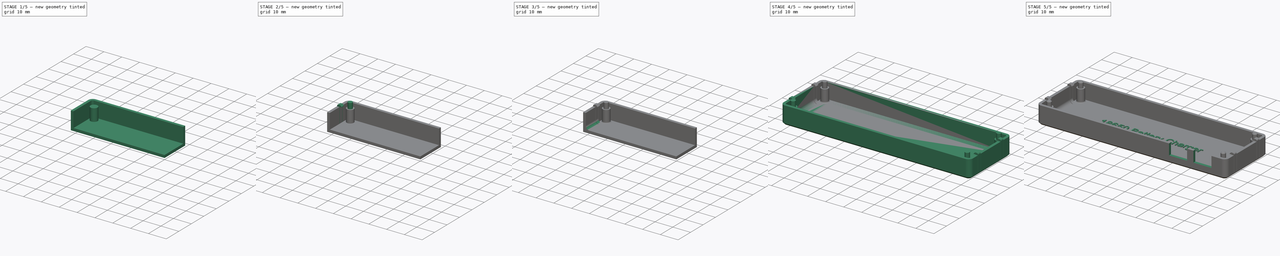
[diagram: build sequence overview — one tinted view per stage of 5, left to right]
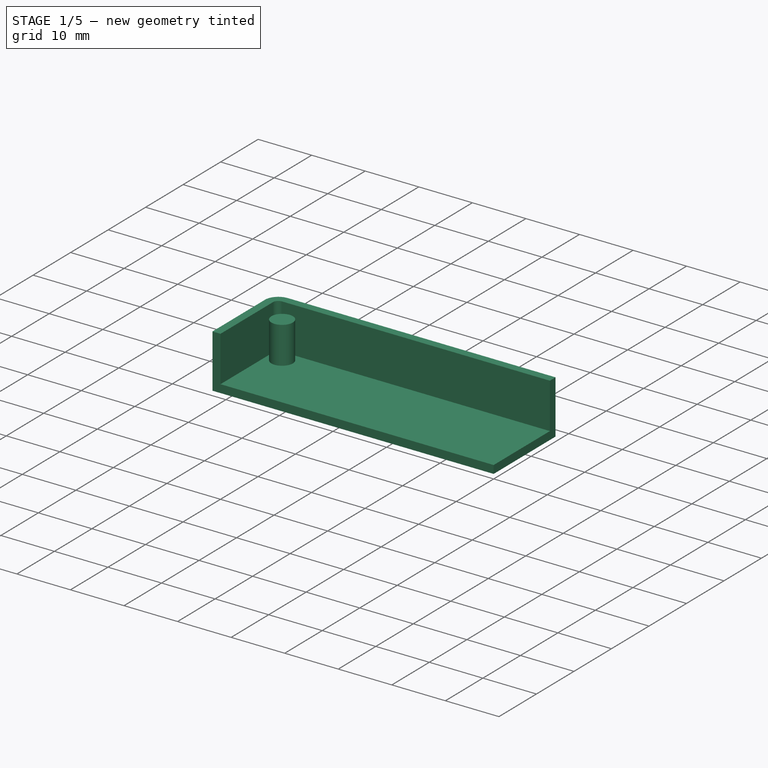
[diagram: stage 1 of 5 — iso view after this stage's code; geometry added in this stage tinted green]
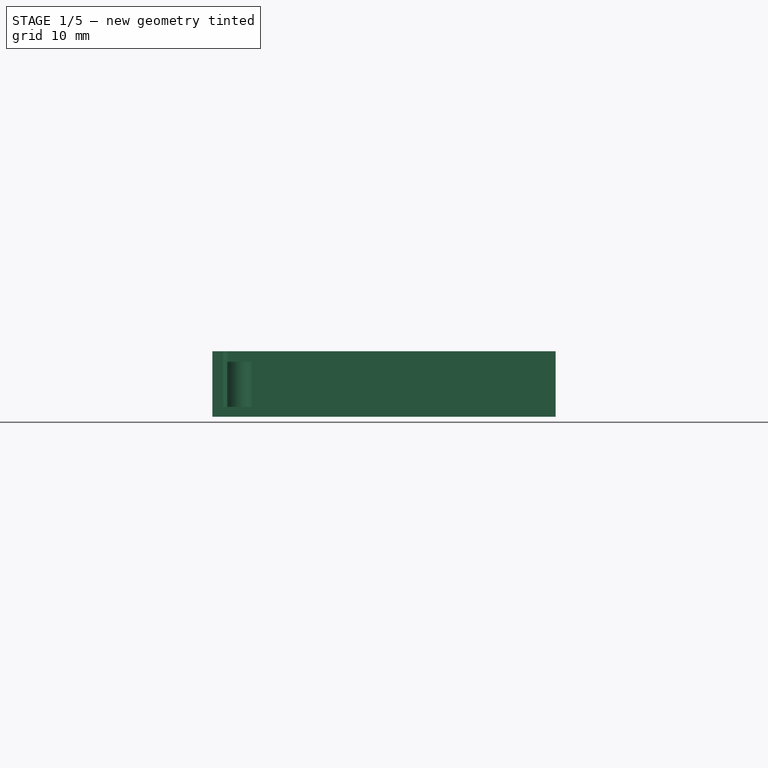
[diagram: stage 1 of 5 — front view after this stage's code; geometry added in this stage tinted green]
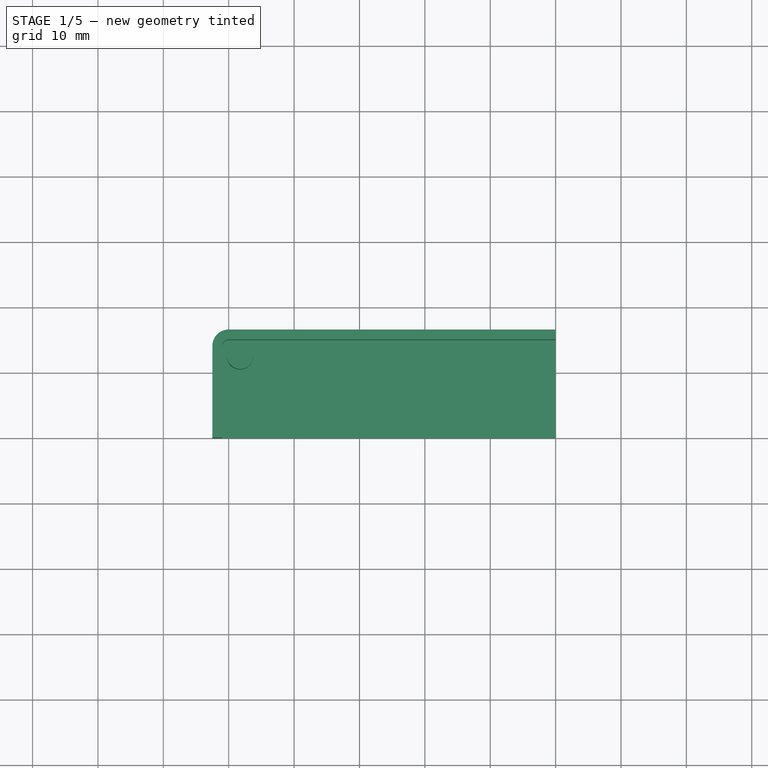
[diagram: stage 1 of 5 — top view after this stage's code; geometry added in this stage tinted green]
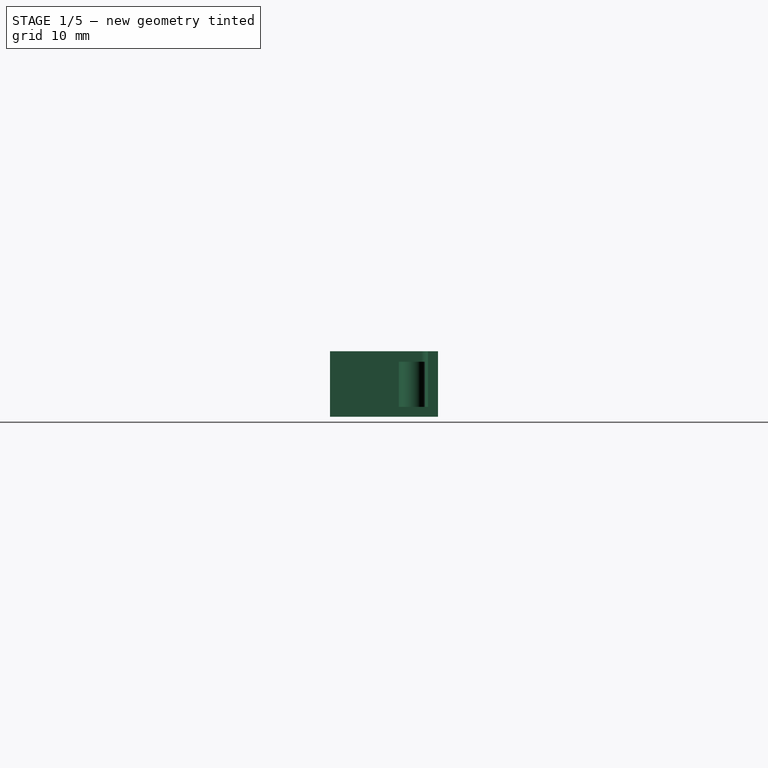
[diagram: stage 1 of 5 — right view after this stage's code; geometry added in this stage tinted green]
FCSTD DOCUMENT  (FreeCAD 1.1R20260223 (Git shallow))
Label: Exercise_2
License: All rights reserved
LicenseURL: http://en.wikipedia.org/wiki/All_rights_reserved
objects: Sketcher::SketchObject×7, PartDesign::Pad×5, PartDesign::Fillet×3, PartDesign::Pocket×2, PartDesign::Mirrored×2, PartDesign::Chamfer×2, App::Point×1, PartDesign::Thickness×1, Part::Part2DObjectPython×1, PartDesign::Body×1
note: 59 computed .brp shape members not serialized (recipe doc carries the construction recipe); baked Part::Feature solids carry a one-line shape summary decoded from their .brp

FEATURE [App::Point] Origin003
  Role = Origin
FEATURE [Sketcher::SketchObject] Sketch003
  ArcFitTolerance = 1e-06
  AttachmentSupport = -> [Origin002]
  ExternalTypes = [0]
  FullyConstrained = true
  MakeInternals = false
  MapMode = 5
  expr: Constraints[13] = 105 / 2
  expr: Constraints[14] = 33 / 2
  sketch-geometry (6):
    g0: LineSegment StartX=0 StartY=0 StartZ=0 EndX=0 EndY=16.5 EndZ=0
    g1: LineSegment StartX=0 StartY=16.5 StartZ=0 EndX=-50 EndY=16.5 EndZ=0
    g2: LineSegment StartX=-52.5 StartY=14 StartZ=0 EndX=-52.5 EndY=0 EndZ=0
    g3: LineSegment StartX=-52.5 StartY=0 StartZ=0 EndX=0 EndY=0 EndZ=0
    g4: ArcOfCircle CenterX=-50 CenterY=14 CenterZ=0 NormalX=0 NormalY=0 NormalZ=1 AngleXU=0 Radius=2.5 StartAngle=1.5708 EndAngle=3.14159
    g5: GeomPoint [constr] X=-52.5 Y=16.5 Z=0
  constraints (15):
    c: Coincident(g0,g1)
    c: Coincident(g2,g3)
    c: Coincident(g3,g0)
    c: Vertical(g0)
    c: Vertical(g2)
    c: Horizontal(g1)
    c: Horizontal(g3)
    c: Coincident(g0,g-1)
    c: PointOnObject(g5,g1)
    c: PointOnObject(g5,g2)
    c: Tangent(g1,g4) = -1.5708
    c: Tangent(g2,g4) = -1.5708
    c: Radius(g4) = 2.5
    c: DistanceX(g2,g-1) = 52.5
    c: DistanceY(g-1,g0) = 16.5
FEATURE [PartDesign::Pad] Pad003
  Direction = (0,0,1)
  Length = 10
  Length2 = 10
  Profile = -> Sketch003
  ReferenceAxis = -> Sketch003 [N_Axis]
  Refine = true
  SideType = 0
  Suppressed = false
  Type = 0
  Type2 = 0
FEATURE [PartDesign::Thickness] Thickness
  Base = -> Pad003 [Face7,Face5,Face1]
  BaseFeature = -> Pad003
  Intersection = true
  Join = 0
  Mode = 0
  Refine = true
  Reversed = true
  SupportTransform = false
  Suppressed = false
  Value = 1.5
FEATURE [Sketcher::SketchObject] Sketch004
  ArcFitTolerance = 1e-06
  AttachmentSupport = -> [Thickness]
  ExternalTypes = [0]
  FullyConstrained = true
  MakeInternals = false
  MapMode = 5
  Placement = pos=(0,0,1.5) rot=(0,0,1;0rad)
  expr: Constraints[0] = 96.5 / 2
  expr: Constraints[1] = 25 / 2
  sketch-geometry (1):
    g0: Circle CenterX=-48.25 CenterY=12.5 CenterZ=0 NormalX=0 NormalY=0 NormalZ=1 AngleXU=0 Radius=2
  constraints (3):
    c: DistanceX(g0,g-1) = 48.25
    c: DistanceY(g-1,g0) = 12.5
    c: Diameter(g0) = 4
FEATURE [PartDesign::Pad] Pad004
  BaseFeature = -> Thickness
  Direction = (0,0,1)
  Length = 6.9
  Length2 = 10
  Profile = -> Sketch004
  ReferenceAxis = -> Sketch004 [N_Axis]
  Refine = true
  SideType = 0
  Suppressed = false
  Type = 0
  Type2 = 0
  expr: Length = 10 - 1.5 - 1.6
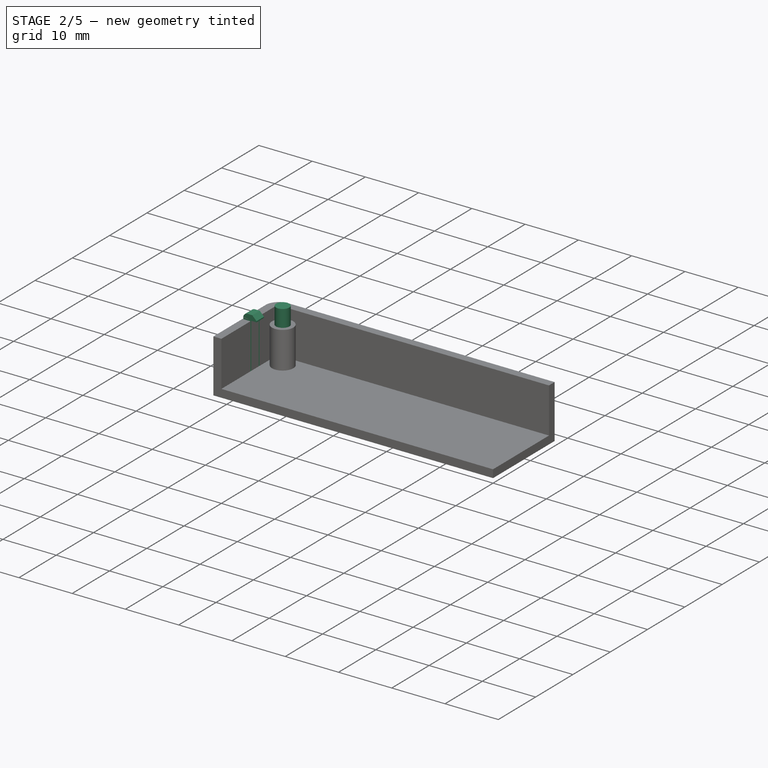
[diagram: stage 2 of 5 — iso view after this stage's code; geometry added in this stage tinted green]
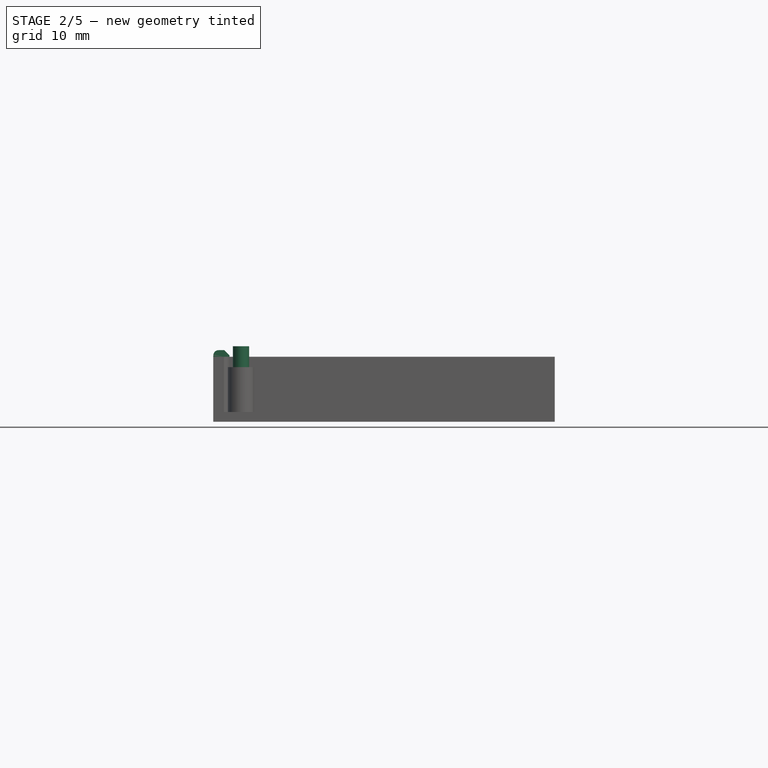
[diagram: stage 2 of 5 — front view after this stage's code; geometry added in this stage tinted green]
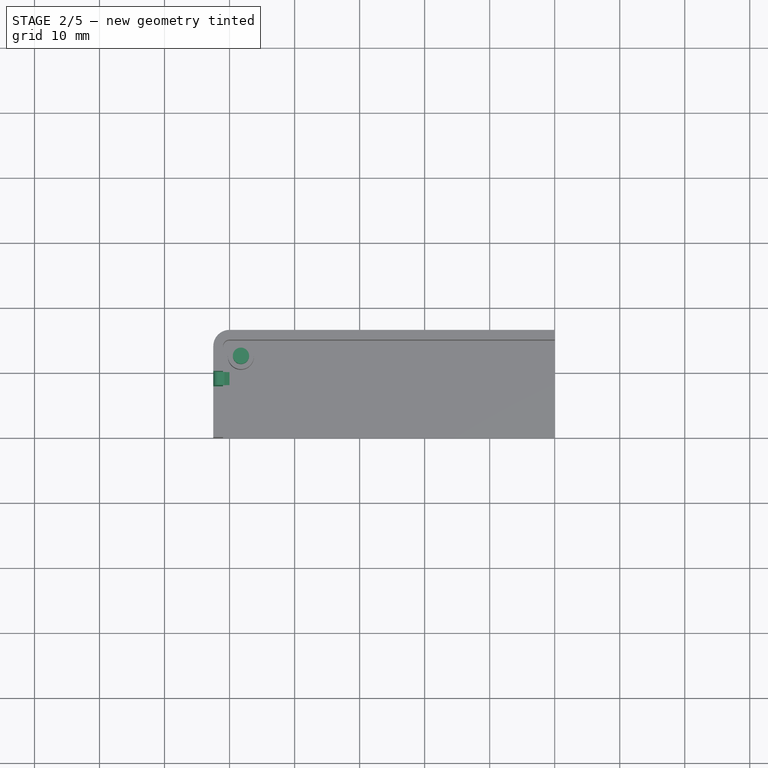
[diagram: stage 2 of 5 — top view after this stage's code; geometry added in this stage tinted green]
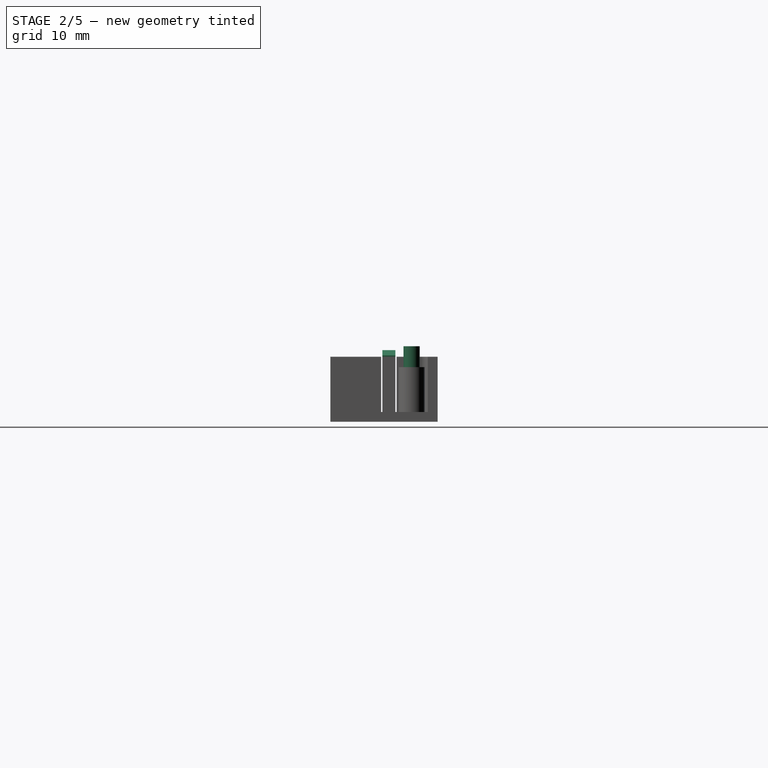
[diagram: stage 2 of 5 — right view after this stage's code; geometry added in this stage tinted green]
FEATURE [Sketcher::SketchObject] Sketch005
  ArcFitTolerance = 1e-06
  AttachmentSupport = -> [Pad004]
  ExternalGeometry = -> [Pad004]
  ExternalTypes = [0]
  FullyConstrained = true
  MakeInternals = false
  MapMode = 5
  Placement = pos=(0,0,8.4) rot=(0,0,1;0rad)
  sketch-geometry (1):
    g0: Circle CenterX=-48.25 CenterY=12.5 CenterZ=0 NormalX=0 NormalY=0 NormalZ=1 AngleXU=0 Radius=1.25
  constraints (2):
    c: Coincident(g0,g-3)
    c: Diameter(g0) = 2.5
FEATURE [PartDesign::Pad] Pad005
  BaseFeature = -> Pad004
  Direction = (0,0,1)
  Length = 3.2
  Length2 = 10
  Profile = -> Sketch005
  ReferenceAxis = -> Sketch005 [N_Axis]
  Refine = true
  SideType = 0
  Suppressed = false
  Type = 0
  Type2 = 0
FEATURE [Sketcher::SketchObject] Sketch006
  ArcFitTolerance = 1e-06
  AttachmentOffset = pos=(0,0,-8) rot=(0,0,1;0rad)
  AttachmentSupport = -> [Pad005]
  ExternalGeometry = -> [Pad005]
  ExternalTypes = [0]
  FullyConstrained = true
  MakeInternals = false
  MapMode = 5
  Placement = pos=(0,8,-1.8e-15) rot=(1,0,0;1.5708rad)
  sketch-geometry (8):
    g0: LineSegment StartX=-52.5 StartY=10 StartZ=0 EndX=-50 EndY=10 EndZ=0
    g1: LineSegment StartX=-50 StartY=10 StartZ=0 EndX=-50 EndY=10.2 EndZ=0
    g2: LineSegment StartX=-50.8 StartY=11 StartZ=0 EndX=-51.7 EndY=11 EndZ=0
    g3: LineSegment StartX=-52.5 StartY=10.2 StartZ=0 EndX=-52.5 EndY=10 EndZ=0
    g4: ArcOfCircle CenterX=-51.7 CenterY=10.2 CenterZ=0 NormalX=0 NormalY=0 NormalZ=1 AngleXU=0 Radius=0.8 StartAngle=1.5708 EndAngle=3.14159
    g5: GeomPoint [constr] X=-52.5 Y=11 Z=0
    g6: GeomPoint [constr] X=-50 Y=11 Z=0
    g7: LineSegment StartX=-50 StartY=10.2 StartZ=0 EndX=-50.8 EndY=11 EndZ=0
  constraints (20):
    c: Coincident(g-3,g0)
    c: Horizontal(g0)
    c: Coincident(g0,g1)
    c: Vertical(g1)
    c: Horizontal(g2)
    c: Coincident(g3,g0)
    c: Vertical(g3)
    c: Distance(g-3,g0) = 1
    c: DistanceY(g1,g6) = 1
    c: PointOnObject(g5,g2)
    c: PointOnObject(g5,g3)
    c: Tangent(g2,g4) = -1.5708
    c: Tangent(g3,g4) = -1.5708
    c: Radius(g4) = 0.8
    c: PointOnObject(g6,g2)
    c: PointOnObject(g6,g1)
    c: Coincident(g7,g1)
    c: Coincident(g7,g2)
    c: Horizontal(g3,g1)
    c: Angle(g7,g0) = 0.785398
FEATURE [PartDesign::Pad] Pad006
  BaseFeature = -> Pad005
  Direction = (0,-1,2e-16)
  Length = 2
  Length2 = 10
  Profile = -> Sketch006
  ReferenceAxis = -> Sketch006 [N_Axis]
  Refine = true
  Reversed = true
  SideType = 0
  Suppressed = false
  Type = 0
  Type2 = 0
FEATURE [Sketcher::SketchObject] Sketch007
  ArcFitTolerance = 1e-06
  AttachmentSupport = -> [Pad006]
  ExternalGeometry = -> [Pad006]
  ExternalTypes = [0,0]
  FullyConstrained = true
  MakeInternals = false
  MapMode = 5
  Placement = pos=(-52.5,0,0) rot=(0.57735,-0.57735,-0.57735;2.0944rad)
  sketch-geometry (8):
    g0: LineSegment StartX=-8 StartY=10 StartZ=0 EndX=-8 EndY=1.5 EndZ=0
    g1: LineSegment StartX=-8 StartY=1.5 StartZ=0 EndX=-7.8 EndY=1.5 EndZ=0
    g2: LineSegment StartX=-7.8 StartY=1.5 StartZ=0 EndX=-7.8 EndY=10 EndZ=0
    g3: LineSegment StartX=-7.8 StartY=10 StartZ=0 EndX=-8 EndY=10 EndZ=0
    g4: LineSegment StartX=-10 StartY=10 StartZ=0 EndX=-10.2 EndY=10 EndZ=0
    g5: LineSegment StartX=-10.2 StartY=10 StartZ=0 EndX=-10.2 EndY=1.5 EndZ=0
    g6: LineSegment StartX=-10.2 StartY=1.5 StartZ=0 EndX=-10 EndY=1.5 EndZ=0
    g7: LineSegment StartX=-10 StartY=1.5 StartZ=0 EndX=-10 EndY=10 EndZ=0
  constraints (22):
    c: Coincident(g0,g1)
    c: Coincident(g1,g2)
    c: Coincident(g2,g3)
    c: Coincident(g3,g0)
    c: Vertical(g0)
    c: Vertical(g2)
    c: Horizontal(g1)
    c: Horizontal(g3)
    c: Coincident(g0,g-3)
    c: Coincident(g4,g5)
    c: Coincident(g5,g6)
    c: Coincident(g6,g7)
    c: Coincident(g7,g4)
    c: Horizontal(g4)
    c: Horizontal(g6)
    c: Vertical(g5)
    c: Vertical(g7)
    c: Coincident(g4,g-4)
    c: Horizontal(g0,g6)
    c: Distance(g1,g-1) = 1.5
    c: Equal(g1,g6)
    c: Distance(g3,g3) = 0.2
FEATURE [PartDesign::Pocket] Pocket001
  BaseFeature = -> Pad006
  Direction = (1,0,0)
  Length = 5
  Length2 = 5
  Profile = -> Sketch007
  ReferenceAxis = -> Sketch007 [N_Axis]
  Refine = true
  SideType = 0
  Suppressed = false
  Type = 2
  Type2 = 0
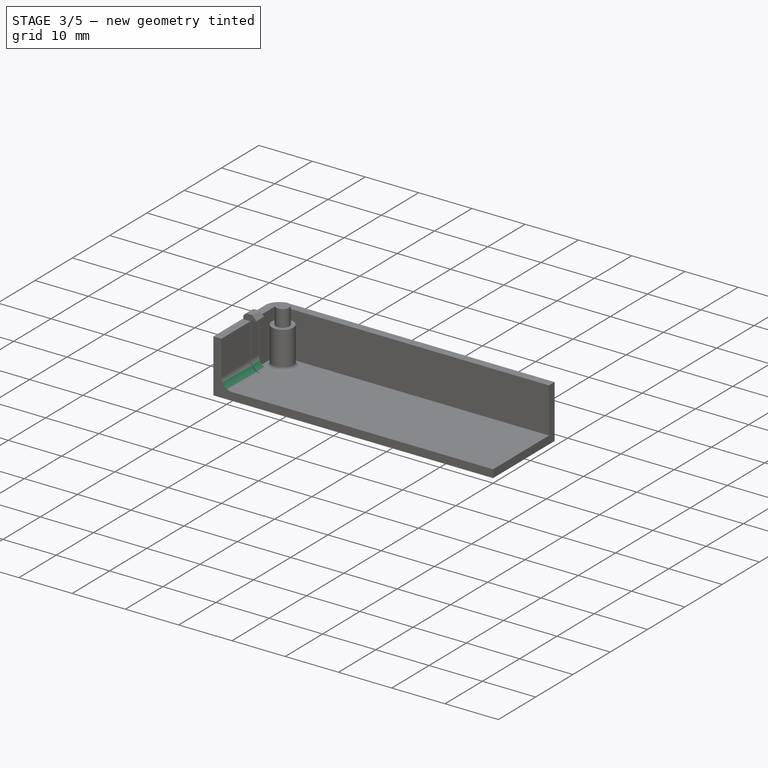
[diagram: stage 3 of 5 — iso view after this stage's code; geometry added in this stage tinted green]
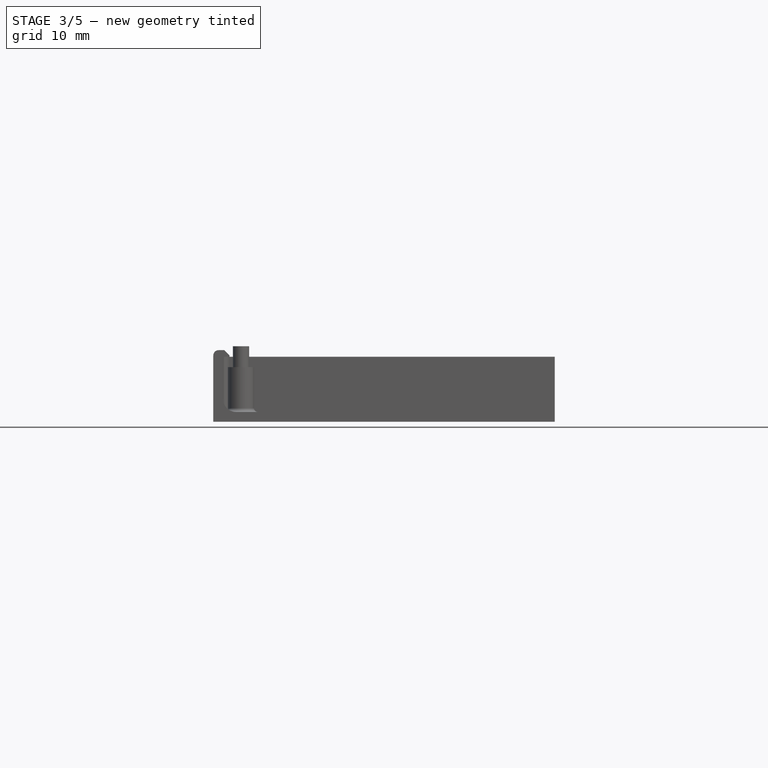
[diagram: stage 3 of 5 — front view after this stage's code; geometry added in this stage tinted green]
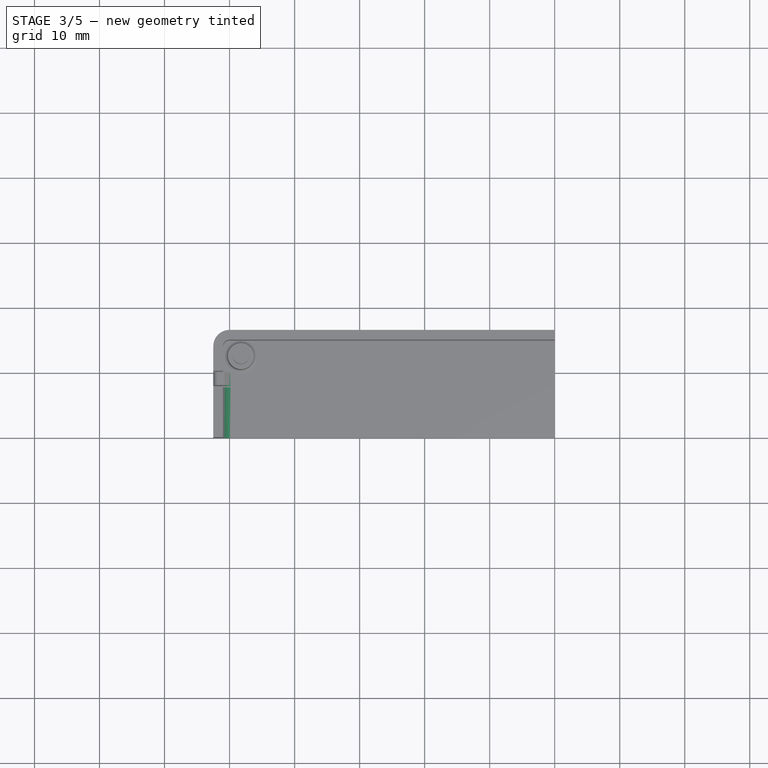
[diagram: stage 3 of 5 — top view after this stage's code; geometry added in this stage tinted green]
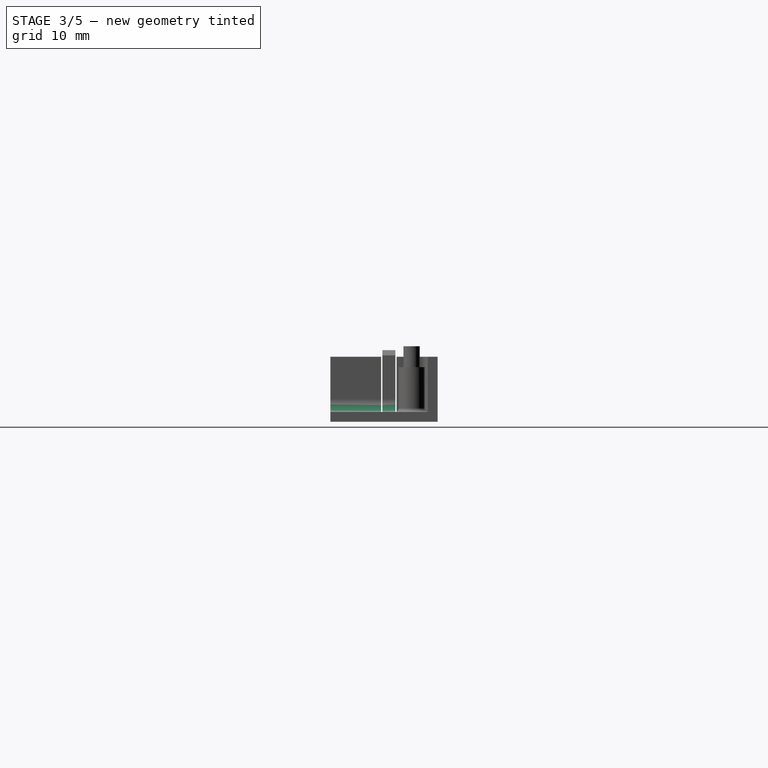
[diagram: stage 3 of 5 — right view after this stage's code; geometry added in this stage tinted green]
FEATURE [PartDesign::Fillet] Fillet003
  Base = -> Pocket001 [Edge1]
  BaseFeature = -> Pocket001
  Radius = 2
  Refine = true
  SupportTransform = false
  Suppressed = false
  UseAllEdges = false
FEATURE [PartDesign::Fillet] Fillet004
  Base = -> Fillet003 [Edge32]
  BaseFeature = -> Fillet003
  Radius = 2
  Refine = true
  SupportTransform = false
  Suppressed = false
  UseAllEdges = false
FEATURE [PartDesign::Fillet] Fillet005
  Base = -> Fillet004 [Edge17]
  BaseFeature = -> Fillet004
  Radius = 0.6
  Refine = true
  SupportTransform = false
  Suppressed = false
  UseAllEdges = false
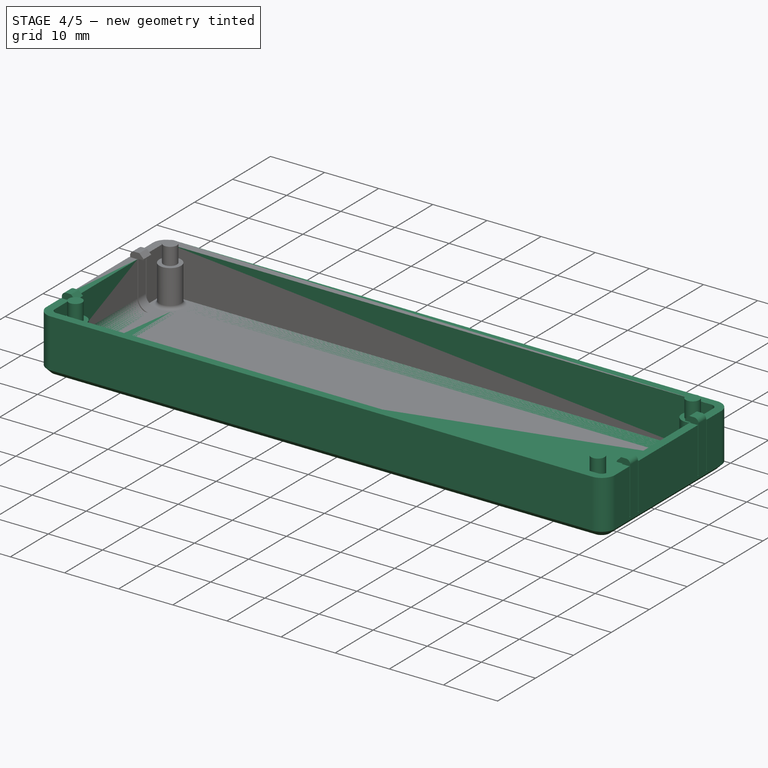
[diagram: stage 4 of 5 — iso view after this stage's code; geometry added in this stage tinted green]
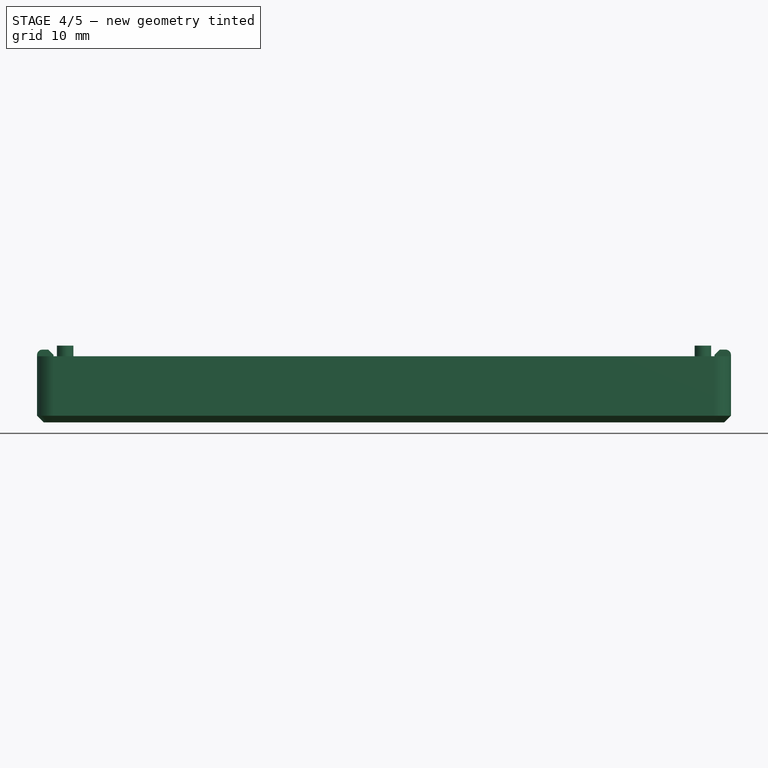
[diagram: stage 4 of 5 — front view after this stage's code; geometry added in this stage tinted green]
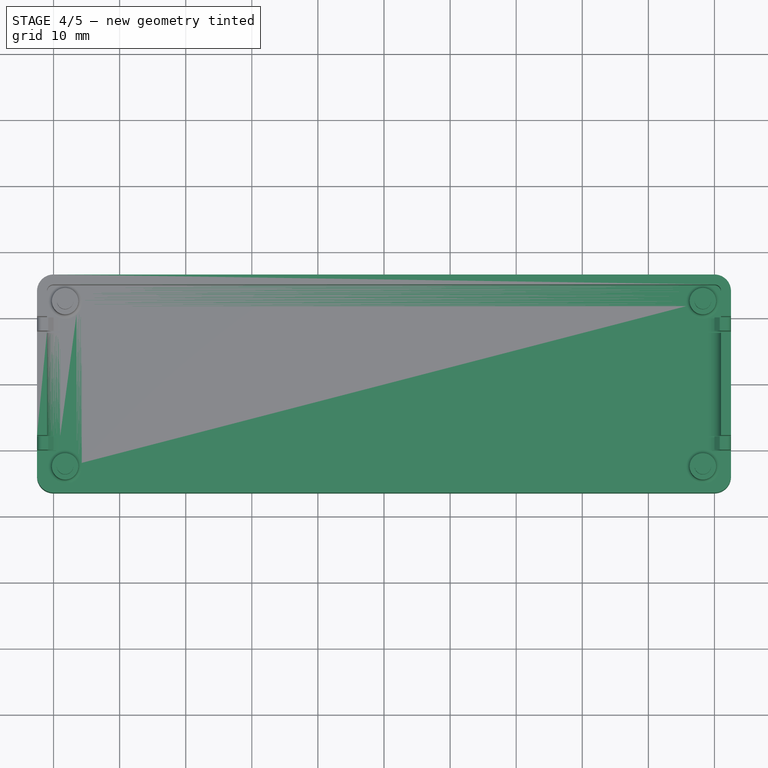
[diagram: stage 4 of 5 — top view after this stage's code; geometry added in this stage tinted green]
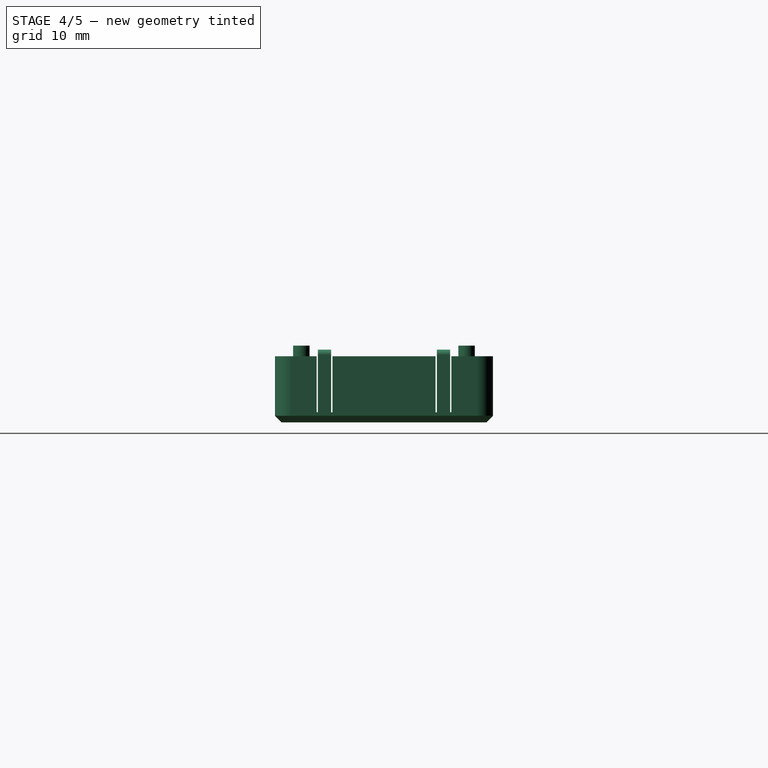
[diagram: stage 4 of 5 — right view after this stage's code; geometry added in this stage tinted green]
FEATURE [PartDesign::Mirrored] Mirrored
  BaseFeature = -> Fillet005
  MirrorPlane = -> XZ_Plane001
  Refine = true
  Suppressed = false
  TransformMode = 1
FEATURE [PartDesign::Mirrored] Mirrored001
  BaseFeature = -> Mirrored
  MirrorPlane = -> YZ_Plane001
  Originals = -> [Mirrored]
  Refine = true
  Suppressed = false
  TransformMode = 1
FEATURE [PartDesign::Chamfer] Chamfer002
  Angle = 45
  Base = -> Mirrored001 [Edge270]
  BaseFeature = -> Mirrored001
  ChamferType = 0
  FlipDirection = false
  Refine = true
  Size = 1
  Size2 = 1
  SupportTransform = false
  Suppressed = false
  UseAllEdges = false
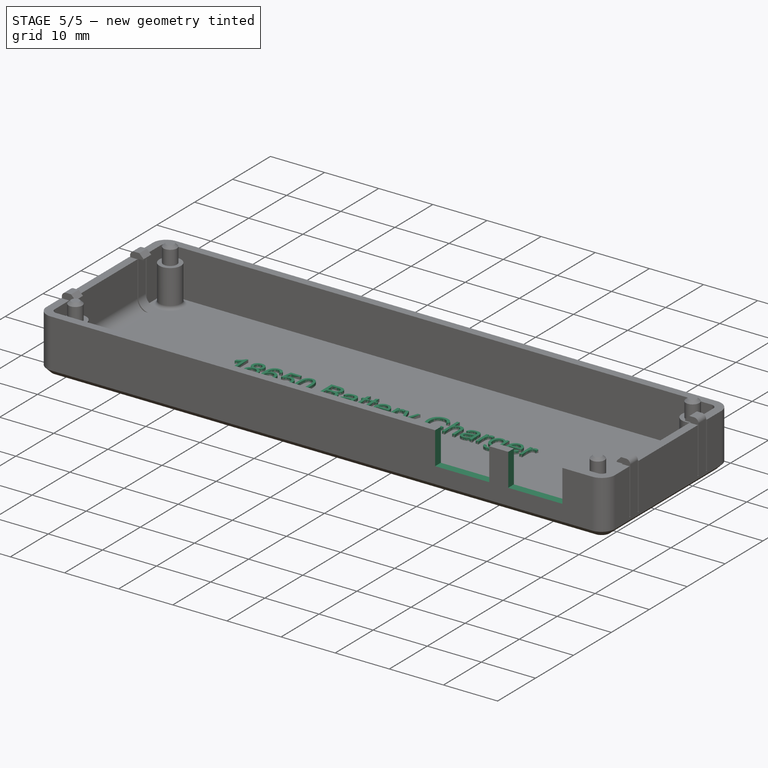
[diagram: stage 5 of 5 — iso view after this stage's code; geometry added in this stage tinted green]
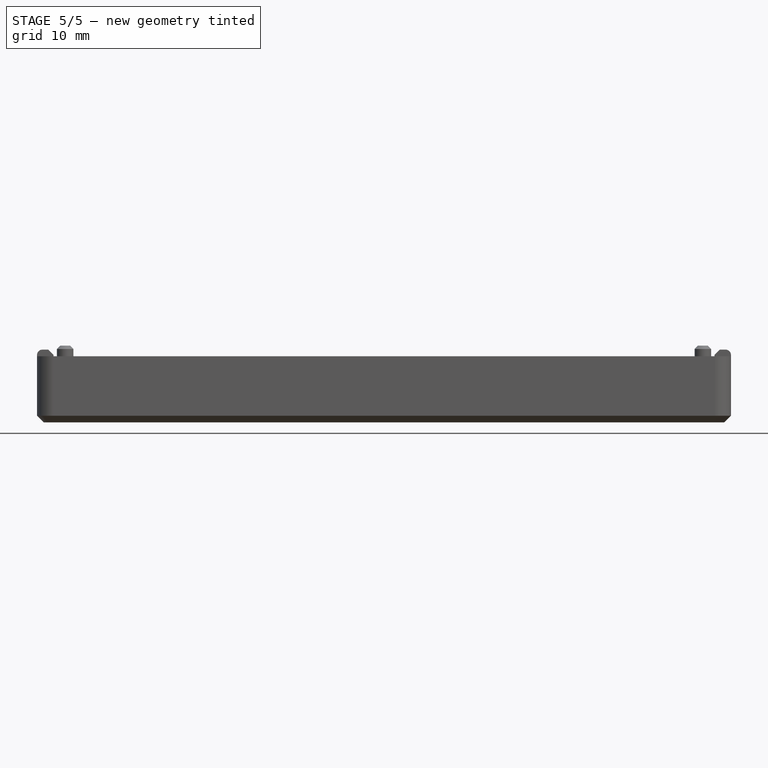
[diagram: stage 5 of 5 — front view after this stage's code; geometry added in this stage tinted green]
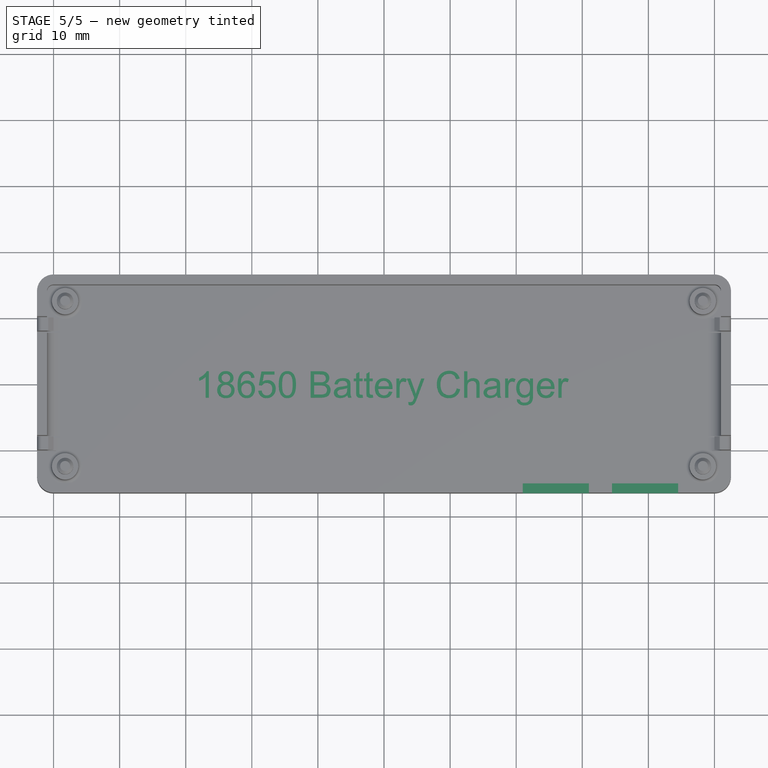
[diagram: stage 5 of 5 — top view after this stage's code; geometry added in this stage tinted green]
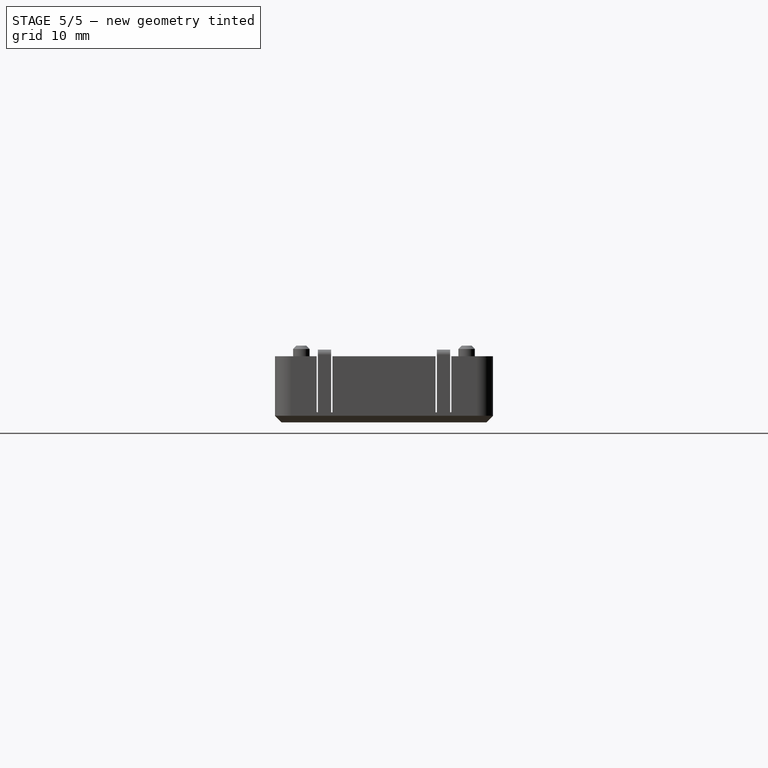
[diagram: stage 5 of 5 — right view after this stage's code; geometry added in this stage tinted green]
FEATURE [Sketcher::SketchObject] Sketch008
  ArcFitTolerance = 1e-06
  AttachmentSupport = -> [Chamfer002]
  ExternalGeometry = -> [Chamfer002]
  ExternalTypes = [0]
  FullyConstrained = true
  MakeInternals = false
  MapMode = 5
  Placement = pos=(0,-16.5,0) rot=(1,0,0;1.5708rad)
  sketch-geometry (8):
    g0: LineSegment StartX=21 StartY=10 StartZ=0 EndX=21 EndY=4 EndZ=0
    g1: LineSegment StartX=21 StartY=4 StartZ=0 EndX=31 EndY=4 EndZ=0
    g2: LineSegment StartX=31 StartY=4 StartZ=0 EndX=31 EndY=10 EndZ=0
    g3: LineSegment StartX=31 StartY=10 StartZ=0 EndX=21 EndY=10 EndZ=0
    g4: LineSegment StartX=34.5 StartY=10 StartZ=0 EndX=34.5 EndY=4 EndZ=0
    g5: LineSegment StartX=34.5 StartY=4 StartZ=0 EndX=44.5 EndY=4 EndZ=0
    g6: LineSegment StartX=44.5 StartY=4 StartZ=0 EndX=44.5 EndY=10 EndZ=0
    g7: LineSegment StartX=44.5 StartY=10 StartZ=0 EndX=34.5 EndY=10 EndZ=0
  constraints (24):
    c: Coincident(g0,g1)
    c: Coincident(g1,g2)
    c: Coincident(g2,g3)
    c: Coincident(g3,g0)
    c: Vertical(g0)
    c: Vertical(g2)
    c: Horizontal(g1)
    c: Horizontal(g3)
    c: Coincident(g4,g5)
    c: Coincident(g5,g6)
    c: Coincident(g6,g7)
    c: Coincident(g7,g4)
    c: Vertical(g4)
    c: Vertical(g6)
    c: Horizontal(g5)
    c: Horizontal(g7)
    c: Equal(g5,g1)
    c: Equal(g2,g4)
    c: Horizontal(g1,g4)
    c: DistanceX(g3,g3) = 10
    c: Distance(g0,g0) = 6
    c: DistanceX(g0,g-3) = 30
    c: DistanceX(g6,g-3) = 6.5
    c: Horizontal(g-3,g6)
FEATURE [PartDesign::Pocket] Pocket002
  BaseFeature = -> Chamfer002
  Direction = (0,1,-2e-16)
  Length = 5
  Length2 = 5
  Profile = -> Sketch008
  ReferenceAxis = -> Sketch008 [N_Axis]
  Refine = true
  SideType = 0
  Suppressed = false
  Type = 2
  Type2 = 0
FEATURE [Part::Part2DObjectPython] ShapeString  # Draft 2D object (typed FeaturePython)
  FontFile = <path>
  Fuse = false
  Justification = 4
  JustificationReference = 0
  KeepLeftMargin = false
  MakeFace = true
  ObliqueAngle = 0
  Placement = pos=(0,-5.6e-15,1.5) rot=(0,0,1;0rad)
  ScaleToSize = true
  Size = 4
  String = 18650 Battery Charger
  Tracking = 0
FEATURE [Sketcher::SketchObject] Sketch009
  ArcFitTolerance = 1e-06
  ExternalTypes = [0]
  FullyConstrained = false
  MakeInternals = false
  Placement = pos=(0,0,1.5) rot=(0,0,1;0rad)
  sketch-geometry (424):
    g0: LineSegment StartX=-26.4943 StartY=-2 StartZ=0 EndX=-26.9848 EndY=-2 EndZ=0
    g1: LineSegment StartX=-26.4943 StartY=2.02326 StartZ=0 EndX=-26.4943 EndY=-2 EndZ=0
    g2: LineSegment StartX=-26.8104 StartY=2.02326 StartZ=0 EndX=-26.4943 EndY=2.02326 EndZ=0
    g3: BSplineCurve PolesCount=3 KnotsCount=2 Degree=2 IsPeriodic=0
    g4: BSplineCurve PolesCount=3 KnotsCount=2 Degree=2 IsPeriodic=0
    g5: LineSegment StartX=-27.9659 StartY=0.541788 StartZ=0 EndX=-27.9659 EndY=1.01744 EndZ=0
    g6: BSplineCurve PolesCount=3 KnotsCount=2 Degree=2 IsPeriodic=0
    g7: BSplineCurve PolesCount=3 KnotsCount=2 Degree=2 IsPeriodic=0
    g8: LineSegment StartX=-26.9848 StartY=-2 StartZ=0 EndX=-26.9848 EndY=1.13499 EndZ=0
    g9: BSplineCurve PolesCount=3 KnotsCount=2 Degree=2 IsPeriodic=0
    g10: BSplineCurve PolesCount=3 KnotsCount=2 Degree=2 IsPeriodic=0
    g11: BSplineCurve PolesCount=3 KnotsCount=2 Degree=2 IsPeriodic=0
    g12: BSplineCurve PolesCount=3 KnotsCount=2 Degree=2 IsPeriodic=0
    g13: BSplineCurve PolesCount=3 KnotsCount=2 Degree=2 IsPeriodic=0
    g14: BSplineCurve PolesCount=3 KnotsCount=2 Degree=2 IsPeriodic=0
    g15: BSplineCurve PolesCount=3 KnotsCount=2 Degree=2 IsPeriodic=0
    g16: BSplineCurve PolesCount=3 KnotsCount=2 Degree=2 IsPeriodic=0
    g17: BSplineCurve PolesCount=3 KnotsCount=2 Degree=2 IsPeriodic=0
    g18: BSplineCurve PolesCount=3 KnotsCount=2 Degree=2 IsPeriodic=0
    g19: BSplineCurve PolesCount=3 KnotsCount=2 Degree=2 IsPeriodic=0
    g20: BSplineCurve PolesCount=3 KnotsCount=2 Degree=2 IsPeriodic=0
    g21: BSplineCurve PolesCount=3 KnotsCount=2 Degree=2 IsPeriodic=0
    g22: BSplineCurve PolesCount=3 KnotsCount=2 Degree=2 IsPeriodic=0
    g23: BSplineCurve PolesCount=3 KnotsCount=2 Degree=2 IsPeriodic=0
    g24: BSplineCurve PolesCount=3 KnotsCount=2 Degree=2 IsPeriodic=0
    g25: BSplineCurve PolesCount=3 KnotsCount=2 Degree=2 IsPeriodic=0
    g26: BSplineCurve PolesCount=3 KnotsCount=2 Degree=2 IsPeriodic=0
    g27: BSplineCurve PolesCount=3 KnotsCount=2 Degree=2 IsPeriodic=0
    g28: BSplineCurve PolesCount=3 KnotsCount=2 Degree=2 IsPeriodic=0
    g29: BSplineCurve PolesCount=3 KnotsCount=2 Degree=2 IsPeriodic=0
    g30: BSplineCurve PolesCount=3 KnotsCount=2 Degree=2 IsPeriodic=0
    g31: BSplineCurve PolesCount=3 KnotsCount=2 Degree=2 IsPeriodic=0
    g32: BSplineCurve PolesCount=3 KnotsCount=2 Degree=2 IsPeriodic=0
    g33: BSplineCurve PolesCount=3 KnotsCount=2 Degree=2 IsPeriodic=0
    g34: BSplineCurve PolesCount=3 KnotsCount=2 Degree=2 IsPeriodic=0
    g35: BSplineCurve PolesCount=3 KnotsCount=2 Degree=2 IsPeriodic=0
    g36: BSplineCurve PolesCount=3 KnotsCount=2 Degree=2 IsPeriodic=0
    g37: BSplineCurve PolesCount=3 KnotsCount=2 Degree=2 IsPeriodic=0
    g38: BSplineCurve PolesCount=3 KnotsCount=2 Degree=2 IsPeriodic=0
    g39: BSplineCurve PolesCount=3 KnotsCount=2 Degree=2 IsPeriodic=0
    g40: BSplineCurve PolesCount=3 KnotsCount=2 Degree=2 IsPeriodic=0
    g41: BSplineCurve PolesCount=3 KnotsCount=2 Degree=2 IsPeriodic=0
    g42: LineSegment StartX=-19.5873 StartY=1.02326 StartZ=0 EndX=-20.0751 EndY=0.988372 EndZ=0
    g43: BSplineCurve PolesCount=3 KnotsCount=2 Degree=2 IsPeriodic=0
    g44: BSplineCurve PolesCount=3 KnotsCount=2 Degree=2 IsPeriodic=0
    g45: BSplineCurve PolesCount=3 KnotsCount=2 Degree=2 IsPeriodic=0
    g46: BSplineCurve PolesCount=3 KnotsCount=2 Degree=2 IsPeriodic=0
    g47: BSplineCurve PolesCount=3 KnotsCount=2 Degree=2 IsPeriodic=0
    g48: BSplineCurve PolesCount=3 KnotsCount=2 Degree=2 IsPeriodic=0
    g49: BSplineCurve PolesCount=3 KnotsCount=2 Degree=2 IsPeriodic=0
    g50: BSplineCurve PolesCount=3 KnotsCount=2 Degree=2 IsPeriodic=0
    g51: BSplineCurve PolesCount=3 KnotsCount=2 Degree=2 IsPeriodic=0
    g52: BSplineCurve PolesCount=3 KnotsCount=2 Degree=2 IsPeriodic=0
    g53: BSplineCurve PolesCount=3 KnotsCount=2 Degree=2 IsPeriodic=0
    g54: BSplineCurve PolesCount=3 KnotsCount=2 Degree=2 IsPeriodic=0
    g55: BSplineCurve PolesCount=3 KnotsCount=2 Degree=2 IsPeriodic=0
    g56: BSplineCurve PolesCount=3 KnotsCount=2 Degree=2 IsPeriodic=0
    g57: BSplineCurve PolesCount=3 KnotsCount=2 Degree=2 IsPeriodic=0
    g58: BSplineCurve PolesCount=3 KnotsCount=2 Degree=2 IsPeriodic=0
    g59: BSplineCurve PolesCount=3 KnotsCount=2 Degree=2 IsPeriodic=0
    g60: BSplineCurve PolesCount=3 KnotsCount=2 Degree=2 IsPeriodic=0
    g61: BSplineCurve PolesCount=3 KnotsCount=2 Degree=2 IsPeriodic=0
    g62: BSplineCurve PolesCount=3 KnotsCount=2 Degree=2 IsPeriodic=0
    g63: BSplineCurve PolesCount=3 KnotsCount=2 Degree=2 IsPeriodic=0
    g64: BSplineCurve PolesCount=3 KnotsCount=2 Degree=2 IsPeriodic=0
    g65: BSplineCurve PolesCount=3 KnotsCount=2 Degree=2 IsPeriodic=0
    g66: BSplineCurve PolesCount=3 KnotsCount=2 Degree=2 IsPeriodic=0
    g67: BSplineCurve PolesCount=3 KnotsCount=2 Degree=2 IsPeriodic=0
    g68: BSplineCurve PolesCount=3 KnotsCount=2 Degree=2 IsPeriodic=0
    g69: BSplineCurve PolesCount=3 KnotsCount=2 Degree=2 IsPeriodic=0
    g70: LineSegment StartX=-19.0281 StartY=-0.953488 StartZ=0 EndX=-18.513 EndY=-0.918605 EndZ=0
    g71: BSplineCurve PolesCount=3 KnotsCount=2 Degree=2 IsPeriodic=0
    g72: BSplineCurve PolesCount=3 KnotsCount=2 Degree=2 IsPeriodic=0
    g73: BSplineCurve PolesCount=3 KnotsCount=2 Degree=2 IsPeriodic=0
    g74: BSplineCurve PolesCount=3 KnotsCount=2 Degree=2 IsPeriodic=0
    g75: BSplineCurve PolesCount=3 KnotsCount=2 Degree=2 IsPeriodic=0
    g76: BSplineCurve PolesCount=3 KnotsCount=2 Degree=2 IsPeriodic=0
    g77: BSplineCurve PolesCount=3 KnotsCount=2 Degree=2 IsPeriodic=0
    g78: LineSegment StartX=-18.1614 StartY=1.48837 StartZ=0 EndX=-18.3767 EndY=0.413881 EndZ=0
    g79: LineSegment StartX=-16.5671 StartY=1.48837 StartZ=0 EndX=-18.1614 EndY=1.48837 EndZ=0
    g80: LineSegment StartX=-16.5671 StartY=1.95349 StartZ=0 EndX=-16.5671 EndY=1.48837 EndZ=0
    g81: LineSegment StartX=-18.5539 StartY=1.95349 StartZ=0 EndX=-16.5671 EndY=1.95349 EndZ=0
    g82: LineSegment StartX=-18.9409 StartY=-0.104651 StartZ=0 EndX=-18.5539 EndY=1.95349 EndZ=0
    g83: LineSegment StartX=-18.4803 StartY=-0.174419 StartZ=0 EndX=-18.9409 EndY=-0.104651 EndZ=0
    g84: BSplineCurve PolesCount=3 KnotsCount=2 Degree=2 IsPeriodic=0
    g85: BSplineCurve PolesCount=3 KnotsCount=2 Degree=2 IsPeriodic=0
    g86: BSplineCurve PolesCount=3 KnotsCount=2 Degree=2 IsPeriodic=0
    g87: BSplineCurve PolesCount=3 KnotsCount=2 Degree=2 IsPeriodic=0
    g88: BSplineCurve PolesCount=3 KnotsCount=2 Degree=2 IsPeriodic=0
    g89: BSplineCurve PolesCount=3 KnotsCount=2 Degree=2 IsPeriodic=0
    g90: BSplineCurve PolesCount=3 KnotsCount=2 Degree=2 IsPeriodic=0
    g91: BSplineCurve PolesCount=3 KnotsCount=2 Degree=2 IsPeriodic=0
    g92: BSplineCurve PolesCount=3 KnotsCount=2 Degree=2 IsPeriodic=0
    g93: BSplineCurve PolesCount=3 KnotsCount=2 Degree=2 IsPeriodic=0
    g94: BSplineCurve PolesCount=3 KnotsCount=2 Degree=2 IsPeriodic=0
    g95: BSplineCurve PolesCount=3 KnotsCount=2 Degree=2 IsPeriodic=0
    g96: BSplineCurve PolesCount=3 KnotsCount=2 Degree=2 IsPeriodic=0
    g97: BSplineCurve PolesCount=3 KnotsCount=2 Degree=2 IsPeriodic=0
    g98: BSplineCurve PolesCount=3 KnotsCount=2 Degree=2 IsPeriodic=0
    g99: BSplineCurve PolesCount=3 KnotsCount=2 Degree=2 IsPeriodic=0
    g100: BSplineCurve PolesCount=3 KnotsCount=2 Degree=2 IsPeriodic=0
    g101: BSplineCurve PolesCount=3 KnotsCount=2 Degree=2 IsPeriodic=0
    g102: BSplineCurve PolesCount=3 KnotsCount=2 Degree=2 IsPeriodic=0
    g103: BSplineCurve PolesCount=3 KnotsCount=2 Degree=2 IsPeriodic=0
    g104: BSplineCurve PolesCount=3 KnotsCount=2 Degree=2 IsPeriodic=0
    g105: BSplineCurve PolesCount=3 KnotsCount=2 Degree=2 IsPeriodic=0
    g106: BSplineCurve PolesCount=3 KnotsCount=2 Degree=2 IsPeriodic=0
    g107: BSplineCurve PolesCount=3 KnotsCount=2 Degree=2 IsPeriodic=0
    g108: BSplineCurve PolesCount=3 KnotsCount=2 Degree=2 IsPeriodic=0
    g109: BSplineCurve PolesCount=3 KnotsCount=2 Degree=2 IsPeriodic=0
    g110: BSplineCurve PolesCount=3 KnotsCount=2 Degree=2 IsPeriodic=0
    g111: BSplineCurve PolesCount=3 KnotsCount=2 Degree=2 IsPeriodic=0
    g112: LineSegment StartX=-11.0951 StartY=-2 StartZ=0 EndX=-11.0951 EndY=2 EndZ=0
    g113: LineSegment StartX=-9.57168 StartY=-2 StartZ=0 EndX=-11.0951 EndY=-2 EndZ=0
    g114: BSplineCurve PolesCount=3 KnotsCount=2 Degree=2 IsPeriodic=0
    g115: BSplineCurve PolesCount=3 KnotsCount=2 Degree=2 IsPeriodic=0
    g116: BSplineCurve PolesCount=3 KnotsCount=2 Degree=2 IsPeriodic=0
    g117: BSplineCurve PolesCount=3 KnotsCount=2 Degree=2 IsPeriodic=0
    g118: BSplineCurve PolesCount=3 KnotsCount=2 Degree=2 IsPeriodic=0
    g119: BSplineCurve PolesCount=3 KnotsCount=2 Degree=2 IsPeriodic=0
    g120: BSplineCurve PolesCount=3 KnotsCount=2 Degree=2 IsPeriodic=0
    g121: BSplineCurve PolesCount=3 KnotsCount=2 Degree=2 IsPeriodic=0
    g122: BSplineCurve PolesCount=3 KnotsCount=2 Degree=2 IsPeriodic=0
    g123: BSplineCurve PolesCount=3 KnotsCount=2 Degree=2 IsPeriodic=0
    g124: BSplineCurve PolesCount=3 KnotsCount=2 Degree=2 IsPeriodic=0
    g125: LineSegment StartX=-11.0951 StartY=2 StartZ=0 EndX=-9.5962 EndY=2 EndZ=0
    g126: LineSegment StartX=-10.5664 StartY=-1.52326 StartZ=0 EndX=-9.57168 EndY=-1.52326 EndZ=0
    g127: LineSegment StartX=-10.5664 StartY=-0.151163 StartZ=0 EndX=-10.5664 EndY=-1.52326 EndZ=0
    g128: LineSegment StartX=-9.64253 StartY=-0.151163 StartZ=0 EndX=-10.5664 EndY=-0.151163 EndZ=0
    g129: BSplineCurve PolesCount=3 KnotsCount=2 Degree=2 IsPeriodic=0
    g130: BSplineCurve PolesCount=3 KnotsCount=2 Degree=2 IsPeriodic=0
    g131: BSplineCurve PolesCount=3 KnotsCount=2 Degree=2 IsPeriodic=0
    g132: BSplineCurve PolesCount=3 KnotsCount=2 Degree=2 IsPeriodic=0
    g133: BSplineCurve PolesCount=3 KnotsCount=2 Degree=2 IsPeriodic=0
    g134: BSplineCurve PolesCount=3 KnotsCount=2 Degree=2 IsPeriodic=0
    g135: BSplineCurve PolesCount=3 KnotsCount=2 Degree=2 IsPeriodic=0
    g136: LineSegment StartX=-10.5664 StartY=0.325581 StartZ=0 EndX=-9.70249 EndY=0.325581 EndZ=0
    g137: LineSegment StartX=-10.5664 StartY=1.52326 StartZ=0 EndX=-10.5664 EndY=0.325581 EndZ=0
    g138: LineSegment StartX=-9.7679 StartY=1.52326 StartZ=0 EndX=-10.5664 EndY=1.52326 EndZ=0
    g139: BSplineCurve PolesCount=3 KnotsCount=2 Degree=2 IsPeriodic=0
    g140: BSplineCurve PolesCount=3 KnotsCount=2 Degree=2 IsPeriodic=0
    g141: BSplineCurve PolesCount=3 KnotsCount=2 Degree=2 IsPeriodic=0
    g142: BSplineCurve PolesCount=3 KnotsCount=2 Degree=2 IsPeriodic=0
    g143: BSplineCurve PolesCount=3 KnotsCount=2 Degree=2 IsPeriodic=0
    g144: BSplineCurve PolesCount=3 KnotsCount=2 Degree=2 IsPeriodic=0
    g145: BSplineCurve PolesCount=3 KnotsCount=2 Degree=2 IsPeriodic=0
    g146: BSplineCurve PolesCount=3 KnotsCount=2 Degree=2 IsPeriodic=0
    g147: LineSegment StartX=-4.91597 StartY=-2 StartZ=0 EndX=-5.42832 EndY=-2 EndZ=0
    g148: BSplineCurve PolesCount=3 KnotsCount=2 Degree=2 IsPeriodic=0
    g149: BSplineCurve PolesCount=3 KnotsCount=2 Degree=2 IsPeriodic=0
    g150: LineSegment StartX=-5.07131 StartY=-0.139898 StartZ=0 EndX=-5.07131 EndY=-0.788699 EndZ=0
    g151: BSplineCurve PolesCount=3 KnotsCount=2 Degree=2 IsPeriodic=0
    g152: BSplineCurve PolesCount=3 KnotsCount=2 Degree=2 IsPeriodic=0
    g153: BSplineCurve PolesCount=3 KnotsCount=2 Degree=2 IsPeriodic=0
    g154: BSplineCurve PolesCount=3 KnotsCount=2 Degree=2 IsPeriodic=0
    g155: BSplineCurve PolesCount=3 KnotsCount=2 Degree=2 IsPeriodic=0
    g156: BSplineCurve PolesCount=3 KnotsCount=2 Degree=2 IsPeriodic=0
    g157: BSplineCurve PolesCount=3 KnotsCount=2 Degree=2 IsPeriodic=0
    g158: LineSegment StartX=-7.01717 StartY=-0.0116279 StartZ=0 EndX=-7.49682 EndY=0.0581395 EndZ=0
    g159: BSplineCurve PolesCount=3 KnotsCount=2 Degree=2 IsPeriodic=0
    g160: BSplineCurve PolesCount=3 KnotsCount=2 Degree=2 IsPeriodic=0
    g161: BSplineCurve PolesCount=3 KnotsCount=2 Degree=2 IsPeriodic=0
    g162: BSplineCurve PolesCount=3 KnotsCount=2 Degree=2 IsPeriodic=0
    g163: BSplineCurve PolesCount=3 KnotsCount=2 Degree=2 IsPeriodic=0
    g164: BSplineCurve PolesCount=3 KnotsCount=2 Degree=2 IsPeriodic=0
    g165: BSplineCurve PolesCount=3 KnotsCount=2 Degree=2 IsPeriodic=0
    g166: BSplineCurve PolesCount=3 KnotsCount=2 Degree=2 IsPeriodic=0
    g167: BSplineCurve PolesCount=3 KnotsCount=2 Degree=2 IsPeriodic=0
    g168: BSplineCurve PolesCount=3 KnotsCount=2 Degree=2 IsPeriodic=0
    g169: BSplineCurve PolesCount=3 KnotsCount=2 Degree=2 IsPeriodic=0
    g170: BSplineCurve PolesCount=3 KnotsCount=2 Degree=2 IsPeriodic=0
    g171: BSplineCurve PolesCount=3 KnotsCount=2 Degree=2 IsPeriodic=0
    g172: BSplineCurve PolesCount=3 KnotsCount=2 Degree=2 IsPeriodic=0
    g173: LineSegment StartX=-5.56731 StartY=-0.725836 StartZ=0 EndX=-5.56731 EndY=-0.546512 EndZ=0
    g174: BSplineCurve PolesCount=3 KnotsCount=2 Degree=2 IsPeriodic=0
    g175: BSplineCurve PolesCount=3 KnotsCount=2 Degree=2 IsPeriodic=0
    g176: BSplineCurve PolesCount=3 KnotsCount=2 Degree=2 IsPeriodic=0
    g177: BSplineCurve PolesCount=3 KnotsCount=2 Degree=2 IsPeriodic=0
    g178: BSplineCurve PolesCount=3 KnotsCount=2 Degree=2 IsPeriodic=0
    g179: BSplineCurve PolesCount=3 KnotsCount=2 Degree=2 IsPeriodic=0
    g180: BSplineCurve PolesCount=3 KnotsCount=2 Degree=2 IsPeriodic=0
    g181: BSplineCurve PolesCount=3 KnotsCount=2 Degree=2 IsPeriodic=0
    g182: LineSegment StartX=-3.23937 StartY=-1.55614 StartZ=0 EndX=-3.16851 EndY=-1.98946 EndZ=0
    g183: BSplineCurve PolesCount=3 KnotsCount=2 Degree=2 IsPeriodic=0
    g184: BSplineCurve PolesCount=3 KnotsCount=2 Degree=2 IsPeriodic=0
    g185: BSplineCurve PolesCount=3 KnotsCount=2 Degree=2 IsPeriodic=0
    g186: BSplineCurve PolesCount=3 KnotsCount=2 Degree=2 IsPeriodic=0
    g187: LineSegment StartX=-3.73265 StartY=0.511628 StartZ=0 EndX=-3.73265 EndY=-1.16206 EndZ=0
    g188: LineSegment StartX=-3.23937 StartY=0.511628 StartZ=0 EndX=-3.73265 EndY=0.511628 EndZ=0
    g189: LineSegment StartX=-3.23937 StartY=0.895349 StartZ=0 EndX=-3.23937 EndY=0.511628 EndZ=0
    g190: LineSegment StartX=-3.73265 StartY=0.895349 StartZ=0 EndX=-3.23937 EndY=0.895349 EndZ=0
    g191: LineSegment StartX=-3.73265 StartY=1.90643 StartZ=0 EndX=-3.73265 EndY=0.895349 EndZ=0
    g192: LineSegment StartX=-4.22048 StartY=1.6121 StartZ=0 EndX=-3.73265 EndY=1.90643 EndZ=0
    g193: LineSegment StartX=-4.22048 StartY=0.895349 StartZ=0 EndX=-4.22048 EndY=1.6121 EndZ=0
    g194: LineSegment StartX=-4.58021 StartY=0.895349 StartZ=0 EndX=-4.22048 EndY=0.895349 EndZ=0
    g195: LineSegment StartX=-4.58021 StartY=0.511628 StartZ=0 EndX=-4.58021 EndY=0.895349 EndZ=0
    g196: LineSegment StartX=-4.22048 StartY=0.511628 StartZ=0 EndX=-4.58021 EndY=0.511628 EndZ=0
    g197: LineSegment StartX=-4.22048 StartY=-1.15062 StartZ=0 EndX=-4.22048 EndY=0.511628 EndZ=0
    g198: BSplineCurve PolesCount=3 KnotsCount=2 Degree=2 IsPeriodic=0
    g199: BSplineCurve PolesCount=3 KnotsCount=2 Degree=2 IsPeriodic=0
    g200: BSplineCurve PolesCount=3 KnotsCount=2 Degree=2 IsPeriodic=0
    g201: BSplineCurve PolesCount=3 KnotsCount=2 Degree=2 IsPeriodic=0
    g202: LineSegment StartX=-1.69286 StartY=-1.55614 StartZ=0 EndX=-1.622 EndY=-1.98946 EndZ=0
    g203: BSplineCurve PolesCount=3 KnotsCount=2 Degree=2 IsPeriodic=0
    g204: BSplineCurve PolesCount=3 KnotsCount=2 Degree=2 IsPeriodic=0
    g205: BSplineCurve PolesCount=3 KnotsCount=2 Degree=2 IsPeriodic=0
    g206: BSplineCurve PolesCount=3 KnotsCount=2 Degree=2 IsPeriodic=0
    g207: LineSegment StartX=-2.18614 StartY=0.511628 StartZ=0 EndX=-2.18614 EndY=-1.16206 EndZ=0
    g208: LineSegment StartX=-1.69286 StartY=0.511628 StartZ=0 EndX=-2.18614 EndY=0.511628 EndZ=0
    g209: LineSegment StartX=-1.69286 StartY=0.895349 StartZ=0 EndX=-1.69286 EndY=0.511628 EndZ=0
    g210: LineSegment StartX=-2.18614 StartY=0.895349 StartZ=0 EndX=-1.69286 EndY=0.895349 EndZ=0
    g211: LineSegment StartX=-2.18614 StartY=1.90643 StartZ=0 EndX=-2.18614 EndY=0.895349 EndZ=0
    g212: LineSegment StartX=-2.67396 StartY=1.6121 StartZ=0 EndX=-2.18614 EndY=1.90643 EndZ=0
    g213: LineSegment StartX=-2.67396 StartY=0.895349 StartZ=0 EndX=-2.67396 EndY=1.6121 EndZ=0
    g214: LineSegment StartX=-3.0337 StartY=0.895349 StartZ=0 EndX=-2.67396 EndY=0.895349 EndZ=0
    g215: LineSegment StartX=-3.0337 StartY=0.511628 StartZ=0 EndX=-3.0337 EndY=0.895349 EndZ=0
    g216: LineSegment StartX=-2.67396 StartY=0.511628 StartZ=0 EndX=-3.0337 EndY=0.511628 EndZ=0
    g217: LineSegment StartX=-2.67396 StartY=-1.15062 StartZ=0 EndX=-2.67396 EndY=0.511628 EndZ=0
    g218: BSplineCurve PolesCount=3 KnotsCount=2 Degree=2 IsPeriodic=0
    g219: BSplineCurve PolesCount=3 KnotsCount=2 Degree=2 IsPeriodic=0
    g220: BSplineCurve PolesCount=3 KnotsCount=2 Degree=2 IsPeriodic=0
    g221: BSplineCurve PolesCount=3 KnotsCount=2 Degree=2 IsPeriodic=0
    g222: LineSegment StartX=0.763899 StartY=-1.05814 StartZ=0 EndX=1.2708 EndY=-1.12791 EndZ=0
    g223: BSplineCurve PolesCount=3 KnotsCount=2 Degree=2 IsPeriodic=0
    g224: BSplineCurve PolesCount=3 KnotsCount=2 Degree=2 IsPeriodic=0
    g225: BSplineCurve PolesCount=3 KnotsCount=2 Degree=2 IsPeriodic=0
    g226: BSplineCurve PolesCount=3 KnotsCount=2 Degree=2 IsPeriodic=0
    g227: LineSegment StartX=1.28443 StartY=-0.674419 StartZ=0 EndX=-0.874001 EndY=-0.674419 EndZ=0
    g228: BSplineCurve PolesCount=3 KnotsCount=2 Degree=2 IsPeriodic=0
    g229: BSplineCurve PolesCount=3 KnotsCount=2 Degree=2 IsPeriodic=0
    g230: BSplineCurve PolesCount=3 KnotsCount=2 Degree=2 IsPeriodic=0
    g231: BSplineCurve PolesCount=3 KnotsCount=2 Degree=2 IsPeriodic=0
    g232: BSplineCurve PolesCount=3 KnotsCount=2 Degree=2 IsPeriodic=0
    g233: BSplineCurve PolesCount=3 KnotsCount=2 Degree=2 IsPeriodic=0
    g234: BSplineCurve PolesCount=3 KnotsCount=2 Degree=2 IsPeriodic=0
    g235: BSplineCurve PolesCount=3 KnotsCount=2 Degree=2 IsPeriodic=0
    g236: BSplineCurve PolesCount=3 KnotsCount=2 Degree=2 IsPeriodic=0
    g237: LineSegment StartX=-0.846748 StartY=-0.267442 StartZ=0 EndX=0.76935 EndY=-0.267442 EndZ=0
    g238: BSplineCurve PolesCount=3 KnotsCount=2 Degree=2 IsPeriodic=0
    g239: BSplineCurve PolesCount=3 KnotsCount=2 Degree=2 IsPeriodic=0
    g240: BSplineCurve PolesCount=3 KnotsCount=2 Degree=2 IsPeriodic=0
    g241: BSplineCurve PolesCount=3 KnotsCount=2 Degree=2 IsPeriodic=0
    g242: LineSegment StartX=1.88181 StartY=-2 StartZ=0 EndX=1.88181 EndY=0.895349 EndZ=0
    g243: LineSegment StartX=2.37237 StartY=-2 StartZ=0 EndX=1.88181 EndY=-2 EndZ=0
    g244: LineSegment StartX=2.37237 StartY=-0.491461 StartZ=0 EndX=2.37237 EndY=-2 EndZ=0
    g245: BSplineCurve PolesCount=3 KnotsCount=2 Degree=2 IsPeriodic=0
    g246: BSplineCurve PolesCount=3 KnotsCount=2 Degree=2 IsPeriodic=0
    g247: BSplineCurve PolesCount=3 KnotsCount=2 Degree=2 IsPeriodic=0
    g248: BSplineCurve PolesCount=3 KnotsCount=2 Degree=2 IsPeriodic=0
    g249: LineSegment StartX=3.45431 StartY=0.800145 StartZ=0 EndX=3.28534 EndY=0.347384 EndZ=0
    g250: BSplineCurve PolesCount=3 KnotsCount=2 Degree=2 IsPeriodic=0
    g251: BSplineCurve PolesCount=3 KnotsCount=2 Degree=2 IsPeriodic=0
    g252: BSplineCurve PolesCount=3 KnotsCount=2 Degree=2 IsPeriodic=0
    g253: LineSegment StartX=2.32331 StartY=0.895349 StartZ=0 EndX=2.32331 EndY=0.444586 EndZ=0
    g254: LineSegment StartX=1.88181 StartY=0.895349 StartZ=0 EndX=2.32331 EndY=0.895349 EndZ=0
    g255: LineSegment StartX=3.72593 StartY=-3.10283 StartZ=0 EndX=3.67142 EndY=-2.64244 EndZ=0
    g256: BSplineCurve PolesCount=3 KnotsCount=2 Degree=2 IsPeriodic=0
    g257: BSplineCurve PolesCount=3 KnotsCount=2 Degree=2 IsPeriodic=0
    g258: BSplineCurve PolesCount=3 KnotsCount=2 Degree=2 IsPeriodic=0
    g259: BSplineCurve PolesCount=3 KnotsCount=2 Degree=2 IsPeriodic=0
    g260: LineSegment StartX=6.12146 StartY=0.895349 StartZ=0 EndX=5.02044 EndY=-2.05233 EndZ=0
    g261: LineSegment StartX=5.6309 StartY=0.895349 StartZ=0 EndX=6.12146 EndY=0.895349 EndZ=0
    g262: LineSegment StartX=5.01226 StartY=-0.792696 StartZ=0 EndX=5.6309 EndY=0.895349 EndZ=0
    g263: BSplineCurve PolesCount=3 KnotsCount=2 Degree=2 IsPeriodic=0
    g264: BSplineCurve PolesCount=3 KnotsCount=2 Degree=2 IsPeriodic=0
    g265: LineSegment StartX=3.99846 StartY=0.895349 StartZ=0 EndX=4.60074 EndY=-0.777798 EndZ=0
    g266: LineSegment StartX=3.46975 StartY=0.895349 StartZ=0 EndX=3.99846 EndY=0.895349 EndZ=0
    g267: LineSegment StartX=4.56804 StartY=-1.99582 StartZ=0 EndX=3.46975 EndY=0.895349 EndZ=0
    g268: BSplineCurve PolesCount=3 KnotsCount=2 Degree=2 IsPeriodic=0
    g269: BSplineCurve PolesCount=3 KnotsCount=2 Degree=2 IsPeriodic=0
    g270: BSplineCurve PolesCount=3 KnotsCount=2 Degree=2 IsPeriodic=0
    g271: BSplineCurve PolesCount=3 KnotsCount=2 Degree=2 IsPeriodic=0
    g272: BSplineCurve PolesCount=3 KnotsCount=2 Degree=2 IsPeriodic=0
    g273: LineSegment StartX=10.9983 StartY=-0.597929 StartZ=0 EndX=11.527 EndY=-0.73165 EndZ=0
    g274: BSplineCurve PolesCount=3 KnotsCount=2 Degree=2 IsPeriodic=0
    g275: BSplineCurve PolesCount=3 KnotsCount=2 Degree=2 IsPeriodic=0
    g276: BSplineCurve PolesCount=3 KnotsCount=2 Degree=2 IsPeriodic=0
    g277: BSplineCurve PolesCount=3 KnotsCount=2 Degree=2 IsPeriodic=0
    g278: BSplineCurve PolesCount=3 KnotsCount=2 Degree=2 IsPeriodic=0
    g279: BSplineCurve PolesCount=3 KnotsCount=2 Degree=2 IsPeriodic=0
    g280: BSplineCurve PolesCount=3 KnotsCount=2 Degree=2 IsPeriodic=0
    g281: BSplineCurve PolesCount=3 KnotsCount=2 Degree=2 IsPeriodic=0
    g282: BSplineCurve PolesCount=3 KnotsCount=2 Degree=2 IsPeriodic=0
    g283: BSplineCurve PolesCount=3 KnotsCount=2 Degree=2 IsPeriodic=0
    g284: LineSegment StartX=11.4588 StartY=0.903706 StartZ=0 EndX=10.9383 EndY=0.780887 EndZ=0
    g285: BSplineCurve PolesCount=3 KnotsCount=2 Degree=2 IsPeriodic=0
    g286: BSplineCurve PolesCount=3 KnotsCount=2 Degree=2 IsPeriodic=0
    g287: BSplineCurve PolesCount=3 KnotsCount=2 Degree=2 IsPeriodic=0
    g288: BSplineCurve PolesCount=3 KnotsCount=2 Degree=2 IsPeriodic=0
    g289: BSplineCurve PolesCount=3 KnotsCount=2 Degree=2 IsPeriodic=0
    g290: BSplineCurve PolesCount=3 KnotsCount=2 Degree=2 IsPeriodic=0
    g291: BSplineCurve PolesCount=3 KnotsCount=2 Degree=2 IsPeriodic=0
    g292: BSplineCurve PolesCount=3 KnotsCount=2 Degree=2 IsPeriodic=0
    g293: BSplineCurve PolesCount=3 KnotsCount=2 Degree=2 IsPeriodic=0
    g294: BSplineCurve PolesCount=3 KnotsCount=2 Degree=2 IsPeriodic=0
    g295: LineSegment StartX=12.1198 StartY=-2 StartZ=0 EndX=12.1198 EndY=2 EndZ=0
    g296: LineSegment StartX=12.6104 StartY=-2 StartZ=0 EndX=12.1198 EndY=-2 EndZ=0
    g297: LineSegment StartX=12.6104 StartY=-0.41806 StartZ=0 EndX=12.6104 EndY=-2 EndZ=0
    g298: BSplineCurve PolesCount=3 KnotsCount=2 Degree=2 IsPeriodic=0
    g299: BSplineCurve PolesCount=3 KnotsCount=2 Degree=2 IsPeriodic=0
    g300: BSplineCurve PolesCount=3 KnotsCount=2 Degree=2 IsPeriodic=0
    g301: BSplineCurve PolesCount=3 KnotsCount=2 Degree=2 IsPeriodic=0
    g302: BSplineCurve PolesCount=3 KnotsCount=2 Degree=2 IsPeriodic=0
    g303: LineSegment StartX=13.9866 StartY=-2 StartZ=0 EndX=13.9866 EndY=-0.167515 EndZ=0
    g304: LineSegment StartX=14.4772 StartY=-2 StartZ=0 EndX=13.9866 EndY=-2 EndZ=0
    g305: LineSegment StartX=14.4772 StartY=-0.169695 StartZ=0 EndX=14.4772 EndY=-2 EndZ=0
    g306: BSplineCurve PolesCount=3 KnotsCount=2 Degree=2 IsPeriodic=0
    g307: BSplineCurve PolesCount=3 KnotsCount=2 Degree=2 IsPeriodic=0
    g308: BSplineCurve PolesCount=3 KnotsCount=2 Degree=2 IsPeriodic=0
    g309: BSplineCurve PolesCount=3 KnotsCount=2 Degree=2 IsPeriodic=0
    g310: LineSegment StartX=12.6104 StartY=2 StartZ=0 EndX=12.6104 EndY=0.55923 EndZ=0
    g311: LineSegment StartX=12.1198 StartY=2 StartZ=0 EndX=12.6104 EndY=2 EndZ=0
    g312: BSplineCurve PolesCount=3 KnotsCount=2 Degree=2 IsPeriodic=0
    g313: BSplineCurve PolesCount=3 KnotsCount=2 Degree=2 IsPeriodic=0
    g314: LineSegment StartX=17.7236 StartY=-2 StartZ=0 EndX=17.2112 EndY=-2 EndZ=0
    g315: BSplineCurve PolesCount=3 KnotsCount=2 Degree=2 IsPeriodic=0
    g316: BSplineCurve PolesCount=3 KnotsCount=2 Degree=2 IsPeriodic=0
    g317: LineSegment StartX=17.5682 StartY=-0.139898 StartZ=0 EndX=17.5682 EndY=-0.788699 EndZ=0
    g318: BSplineCurve PolesCount=3 KnotsCount=2 Degree=2 IsPeriodic=0
    g319: BSplineCurve PolesCount=3 KnotsCount=2 Degree=2 IsPeriodic=0
    g320: BSplineCurve PolesCount=3 KnotsCount=2 Degree=2 IsPeriodic=0
    g321: BSplineCurve PolesCount=3 KnotsCount=2 Degree=2 IsPeriodic=0
    g322: BSplineCurve PolesCount=3 KnotsCount=2 Degree=2 IsPeriodic=0
    g323: BSplineCurve PolesCount=3 KnotsCount=2 Degree=2 IsPeriodic=0
    g324: BSplineCurve PolesCount=3 KnotsCount=2 Degree=2 IsPeriodic=0
    g325: LineSegment StartX=15.6224 StartY=-0.0116279 StartZ=0 EndX=15.1427 EndY=0.0581395 EndZ=0
    g326: BSplineCurve PolesCount=3 KnotsCount=2 Degree=2 IsPeriodic=0
    g327: BSplineCurve PolesCount=3 KnotsCount=2 Degree=2 IsPeriodic=0
    g328: BSplineCurve PolesCount=3 KnotsCount=2 Degree=2 IsPeriodic=0
    g329: BSplineCurve PolesCount=3 KnotsCount=2 Degree=2 IsPeriodic=0
    g330: BSplineCurve PolesCount=3 KnotsCount=2 Degree=2 IsPeriodic=0
    g331: BSplineCurve PolesCount=3 KnotsCount=2 Degree=2 IsPeriodic=0
    g332: BSplineCurve PolesCount=3 KnotsCount=2 Degree=2 IsPeriodic=0
    g333: BSplineCurve PolesCount=3 KnotsCount=2 Degree=2 IsPeriodic=0
    g334: BSplineCurve PolesCount=3 KnotsCount=2 Degree=2 IsPeriodic=0
    g335: BSplineCurve PolesCount=3 KnotsCount=2 Degree=2 IsPeriodic=0
    g336: BSplineCurve PolesCount=3 KnotsCount=2 Degree=2 IsPeriodic=0
    g337: BSplineCurve PolesCount=3 KnotsCount=2 Degree=2 IsPeriodic=0
    g338: BSplineCurve PolesCount=3 KnotsCount=2 Degree=2 IsPeriodic=0
    g339: BSplineCurve PolesCount=3 KnotsCount=2 Degree=2 IsPeriodic=0
    g340: LineSegment StartX=17.0722 StartY=-0.725836 StartZ=0 EndX=17.0722 EndY=-0.546512 EndZ=0
    g341: BSplineCurve PolesCount=3 KnotsCount=2 Degree=2 IsPeriodic=0
    g342: BSplineCurve PolesCount=3 KnotsCount=2 Degree=2 IsPeriodic=0
    g343: BSplineCurve PolesCount=3 KnotsCount=2 Degree=2 IsPeriodic=0
    g344: BSplineCurve PolesCount=3 KnotsCount=2 Degree=2 IsPeriodic=0
    g345: BSplineCurve PolesCount=3 KnotsCount=2 Degree=2 IsPeriodic=0
    g346: BSplineCurve PolesCount=3 KnotsCount=2 Degree=2 IsPeriodic=0
    g347: BSplineCurve PolesCount=3 KnotsCount=2 Degree=2 IsPeriodic=0
    g348: BSplineCurve PolesCount=3 KnotsCount=2 Degree=2 IsPeriodic=0
    g349: LineSegment StartX=18.3237 StartY=-2 StartZ=0 EndX=18.3237 EndY=0.895349 EndZ=0
    g350: LineSegment StartX=18.8142 StartY=-2 StartZ=0 EndX=18.3237 EndY=-2 EndZ=0
    g351: LineSegment StartX=18.8142 StartY=-0.491461 StartZ=0 EndX=18.8142 EndY=-2 EndZ=0
    g352: BSplineCurve PolesCount=3 KnotsCount=2 Degree=2 IsPeriodic=0
    g353: BSplineCurve PolesCount=3 KnotsCount=2 Degree=2 IsPeriodic=0
    g354: BSplineCurve PolesCount=3 KnotsCount=2 Degree=2 IsPeriodic=0
    g355: BSplineCurve PolesCount=3 KnotsCount=2 Degree=2 IsPeriodic=0
    g356: LineSegment StartX=19.8962 StartY=0.800145 StartZ=0 EndX=19.7272 EndY=0.347384 EndZ=0
    g357: BSplineCurve PolesCount=3 KnotsCount=2 Degree=2 IsPeriodic=0
    g358: BSplineCurve PolesCount=3 KnotsCount=2 Degree=2 IsPeriodic=0
    g359: BSplineCurve PolesCount=3 KnotsCount=2 Degree=2 IsPeriodic=0
    g360: LineSegment StartX=18.7652 StartY=0.895349 StartZ=0 EndX=18.7652 EndY=0.444586 EndZ=0
    g361: LineSegment StartX=18.3237 StartY=0.895349 StartZ=0 EndX=18.7652 EndY=0.895349 EndZ=0
    g362: LineSegment StartX=20.0997 StartY=-2.23256 StartZ=0 EndX=20.5766 EndY=-2.30233 EndZ=0
    g363: BSplineCurve PolesCount=3 KnotsCount=2 Degree=2 IsPeriodic=0
    g364: BSplineCurve PolesCount=3 KnotsCount=2 Degree=2 IsPeriodic=0
    g365: BSplineCurve PolesCount=3 KnotsCount=2 Degree=2 IsPeriodic=0
    g366: BSplineCurve PolesCount=3 KnotsCount=2 Degree=2 IsPeriodic=0
    g367: BSplineCurve PolesCount=3 KnotsCount=2 Degree=2 IsPeriodic=0
    g368: LineSegment StartX=22.5524 StartY=0.895349 StartZ=0 EndX=22.5524 EndY=-1.59993 EndZ=0
    g369: LineSegment StartX=22.1 StartY=0.895349 StartZ=0 EndX=22.5524 EndY=0.895349 EndZ=0
    g370: LineSegment StartX=22.1 StartY=0.534884 StartZ=0 EndX=22.1 EndY=0.895349 EndZ=0
    g371: BSplineCurve PolesCount=3 KnotsCount=2 Degree=2 IsPeriodic=0
    g372: BSplineCurve PolesCount=3 KnotsCount=2 Degree=2 IsPeriodic=0
    g373: BSplineCurve PolesCount=3 KnotsCount=2 Degree=2 IsPeriodic=0
    g374: BSplineCurve PolesCount=3 KnotsCount=2 Degree=2 IsPeriodic=0
    g375: BSplineCurve PolesCount=3 KnotsCount=2 Degree=2 IsPeriodic=0
    g376: BSplineCurve PolesCount=3 KnotsCount=2 Degree=2 IsPeriodic=0
    g377: BSplineCurve PolesCount=3 KnotsCount=2 Degree=2 IsPeriodic=0
    g378: BSplineCurve PolesCount=3 KnotsCount=2 Degree=2 IsPeriodic=0
    g379: BSplineCurve PolesCount=3 KnotsCount=2 Degree=2 IsPeriodic=0
    g380: BSplineCurve PolesCount=3 KnotsCount=2 Degree=2 IsPeriodic=0
    g381: BSplineCurve PolesCount=3 KnotsCount=2 Degree=2 IsPeriodic=0
    g382: BSplineCurve PolesCount=3 KnotsCount=2 Degree=2 IsPeriodic=0
    g383: BSplineCurve PolesCount=3 KnotsCount=2 Degree=2 IsPeriodic=0
    g384: BSplineCurve PolesCount=3 KnotsCount=2 Degree=2 IsPeriodic=0
    g385: BSplineCurve PolesCount=3 KnotsCount=2 Degree=2 IsPeriodic=0
    g386: BSplineCurve PolesCount=3 KnotsCount=2 Degree=2 IsPeriodic=0
    g387: BSplineCurve PolesCount=3 KnotsCount=2 Degree=2 IsPeriodic=0
    g388: BSplineCurve PolesCount=3 KnotsCount=2 Degree=2 IsPeriodic=0
    g389: BSplineCurve PolesCount=3 KnotsCount=2 Degree=2 IsPeriodic=0
    g390: BSplineCurve PolesCount=3 KnotsCount=2 Degree=2 IsPeriodic=0
    g391: LineSegment StartX=25.2755 StartY=-1.05814 StartZ=0 EndX=25.7824 EndY=-1.12791 EndZ=0
    g392: BSplineCurve PolesCount=3 KnotsCount=2 Degree=2 IsPeriodic=0
    g393: BSplineCurve PolesCount=3 KnotsCount=2 Degree=2 IsPeriodic=0
    g394: BSplineCurve PolesCount=3 KnotsCount=2 Degree=2 IsPeriodic=0
    g395: BSplineCurve PolesCount=3 KnotsCount=2 Degree=2 IsPeriodic=0
    g396: LineSegment StartX=25.7961 StartY=-0.674419 StartZ=0 EndX=23.6376 EndY=-0.674419 EndZ=0
    g397: BSplineCurve PolesCount=3 KnotsCount=2 Degree=2 IsPeriodic=0
    g398: BSplineCurve PolesCount=3 KnotsCount=2 Degree=2 IsPeriodic=0
    g399: BSplineCurve PolesCount=3 KnotsCount=2 Degree=2 IsPeriodic=0
    ... +24 more geometry lines
  constraints (499):
    c: Coincident(g5,g6)
    c: Coincident(g4,g5)
    c: Coincident(g6,g7)
    c: Coincident(g3,g4)
    c: Coincident(g0,g8)
    c: Coincident(g7,g8)
    c: Coincident(g2,g3)
    c: Coincident(g0,g1)
    c: Coincident(g1,g2)
    c: Coincident(g11,g12)
    c: Coincident(g23,g24)
    c: Coincident(g10,g11)
    c: Coincident(g9,g24)
    c: Coincident(g12,g13)
    c: Coincident(g22,g23)
    c: Coincident(g25,g26)
    c: Coincident(g25,g33)
    c: Coincident(g34,g35)
    c: Coincident(g26,g27)
    c: Coincident(g9,g10)
    c: Coincident(g34,g41)
    c: Coincident(g35,g36)
    c: Coincident(g32,g33)
    c: Coincident(g27,g28)
    c: Coincident(g21,g22)
    c: Coincident(g36,g37)
    c: Coincident(g13,g14)
    c: Coincident(g40,g41)
    c: Coincident(g31,g32)
    c: Coincident(g37,g38)
    c: Coincident(g39,g40)
    c: Coincident(g17,g18)
    c: Coincident(g28,g29)
    c: Coincident(g30,g31)
    c: Coincident(g38,g39)
    c: Coincident(g29,g30)
    c: Coincident(g20,g21)
    c: Coincident(g14,g15)
    c: Coincident(g18,g19)
    c: Coincident(g16,g17)
    c: Coincident(g19,g20)
    c: Coincident(g15,g16)
    c: Coincident(g46,g47)
    c: Coincident(g47,g48)
    c: Coincident(g45,g46)
    c: Coincident(g55,g56)
    c: Coincident(g61,g62)
    c: Coincident(g56,g57)
    c: Coincident(g61,g69)
    c: Coincident(g62,g63)
    c: Coincident(g54,g55)
    c: Coincident(g68,g69)
    c: Coincident(g57,g58)
    c: Coincident(g63,g64)
    c: Coincident(g67,g68)
    c: Coincident(g48,g49)
    c: Coincident(g58,g59)
    c: Coincident(g44,g45)
    c: Coincident(g53,g54)
    c: Coincident(g59,g60)
    c: Coincident(g66,g67)
    c: Coincident(g64,g65)
    c: Coincident(g49,g50)
    c: Coincident(g42,g60)
    c: Coincident(g65,g66)
    c: Coincident(g43,g44)
    c: Coincident(g52,g53)
    c: Coincident(g50,g51)
    c: Coincident(g42,g43)
    c: Coincident(g51,g52)
    c: Coincident(g70,g71)
    c: Coincident(g82,g83)
    c: Coincident(g71,g72)
    c: Coincident(g81,g82)
    c: Coincident(g70,g91)
    c: Coincident(g83,g84)
    c: Coincident(g77,g78)
    c: Coincident(g90,g91)
    c: Coincident(g84,g85)
    c: Coincident(g78,g79)
    c: Coincident(g85,g86)
    c: Coincident(g72,g73)
    c: Coincident(g89,g90)
    c: Coincident(g76,g77)
    c: Coincident(g88,g89)
    c: Coincident(g86,g87)
    c: Coincident(g87,g88)
    c: Coincident(g75,g76)
    c: Coincident(g73,g74)
    c: Coincident(g79,g80)
    c: Coincident(g80,g81)
    c: Coincident(g74,g75)
    c: Coincident(g92,g93)
    c: Coincident(g92,g103)
    c: Coincident(g93,g94)
    c: Coincident(g104,g105)
    c: Coincident(g102,g103)
    c: Coincident(g104,g111)
    c: Coincident(g105,g106)
    c: Coincident(g106,g107)
    c: Coincident(g94,g95)
    c: Coincident(g110,g111)
    c: Coincident(g101,g102)
    c: Coincident(g100,g101)
    c: Coincident(g109,g110)
    c: Coincident(g107,g108)
    c: Coincident(g95,g96)
    c: Coincident(g108,g109)
    c: Coincident(g99,g100)
    c: Coincident(g96,g97)
    c: Coincident(g98,g99)
    c: Coincident(g97,g98)
    c: Coincident(g112,g113)
    c: Coincident(g112,g125)
    c: Coincident(g126,g127)
    c: Coincident(g127,g128)
    c: Coincident(g136,g137)
    c: Coincident(g137,g138)
    c: Coincident(g138,g139)
    c: Coincident(g136,g144)
    c: Coincident(g128,g129)
    c: Coincident(g124,g125)
    c: Coincident(g113,g114)
    c: Coincident(g126,g135)
    c: Coincident(g134,g135)
    c: Coincident(g143,g144)
    c: Coincident(g139,g140)
    c: Coincident(g129,g130)
    c: Coincident(g114,g115)
    c: Coincident(g133,g134)
    c: Coincident(g142,g143)
    c: Coincident(g140,g141)
    c: Coincident(g123,g124)
    c: Coincident(g119,g120)
    c: Coincident(g141,g142)
    c: Coincident(g130,g131)
    c: Coincident(g132,g133)
    c: Coincident(g131,g132)
    c: Coincident(g115,g116)
    c: Coincident(g122,g123)
    c: Coincident(g120,g121)
    c: Coincident(g118,g119)
    c: Coincident(g121,g122)
    c: Coincident(g116,g117)
    c: Coincident(g117,g118)
    c: Coincident(g168,g169)
    c: Coincident(g157,g158)
    c: Coincident(g167,g168)
    c: Coincident(g169,g170)
    c: Coincident(g156,g157)
    c: Coincident(g166,g167)
    c: Coincident(g178,g179)
    c: Coincident(g158,g159)
    c: Coincident(g179,g180)
    c: Coincident(g177,g178)
    c: Coincident(g165,g166)
    c: Coincident(g155,g156)
    c: Coincident(g180,g181)
    c: Coincident(g159,g160)
    c: Coincident(g170,g171)
    c: Coincident(g176,g177)
    c: Coincident(g164,g165)
    c: Coincident(g172,g181)
    c: Coincident(g160,g161)
    c: Coincident(g154,g155)
    c: Coincident(g145,g171)
    c: Coincident(g175,g176)
    c: Coincident(g161,g162)
    c: Coincident(g174,g175)
    c: Coincident(g153,g154)
    c: Coincident(g173,g174)
    c: Coincident(g172,g173)
    c: Coincident(g163,g164)
    c: Coincident(g162,g163)
    c: Coincident(g145,g146)
    c: Coincident(g146,g147)
    c: Coincident(g152,g153)
    c: Coincident(g151,g152)
    c: Coincident(g149,g150)
    c: Coincident(g150,g151)
    c: Coincident(g148,g149)
    c: Coincident(g147,g148)
    c: Coincident(g195,g196)
    c: Coincident(g194,g195)
    c: Coincident(g197,g198)
    c: Coincident(g196,g197)
    c: Coincident(g193,g194)
    c: Coincident(g192,g193)
    c: Coincident(g198,g199)
    c: Coincident(g199,g200)
    c: Coincident(g186,g187)
    c: Coincident(g187,g188)
    c: Coincident(g190,g191)
    c: Coincident(g191,g192)
    c: Coincident(g185,g186)
    c: Coincident(g184,g185)
    c: Coincident(g200,g201)
    c: Coincident(g183,g184)
    c: Coincident(g182,g183)
    c: Coincident(g188,g189)
    c: Coincident(g189,g190)
    c: Coincident(g182,g201)
    c: Coincident(g215,g216)
    c: Coincident(g214,g215)
    c: Coincident(g217,g218)
    c: Coincident(g216,g217)
    c: Coincident(g213,g214)
    c: Coincident(g212,g213)
    c: Coincident(g218,g219)
    c: Coincident(g219,g220)
    c: Coincident(g206,g207)
    c: Coincident(g207,g208)
    c: Coincident(g210,g211)
    c: Coincident(g211,g212)
    c: Coincident(g205,g206)
    c: Coincident(g204,g205)
    c: Coincident(g220,g221)
    c: Coincident(g203,g204)
    c: Coincident(g202,g203)
    c: Coincident(g208,g209)
    c: Coincident(g209,g210)
    c: Coincident(g202,g221)
    c: Coincident(g232,g233)
    c: Coincident(g233,g234)
    c: Coincident(g231,g232)
    c: Coincident(g226,g227)
    c: Coincident(g237,g238)
    c: Coincident(g225,g226)
    c: Coincident(g238,g239)
    c: Coincident(g230,g231)
    c: Coincident(g239,g240)
    c: Coincident(g234,g235)
    c: Coincident(g224,g225)
    c: Coincident(g223,g224)
    c: Coincident(g240,g241)
    c: Coincident(g222,g223)
    c: Coincident(g237,g241)
    c: Coincident(g235,g236)
    c: Coincident(g229,g230)
    c: Coincident(g222,g236)
    c: Coincident(g227,g228)
    c: Coincident(g228,g229)
    c: Coincident(g242,g243)
    c: Coincident(g242,g254)
    c: Coincident(g252,g253)
    c: Coincident(g253,g254)
    c: Coincident(g243,g244)
    c: Coincident(g244,g245)
    c: Coincident(g245,g246)
    c: Coincident(g251,g252)
    c: Coincident(g246,g247)
    c: Coincident(g247,g248)
    c: Coincident(g250,g251)
    c: Coincident(g248,g249)
    c: Coincident(g249,g250)
    c: Coincident(g266,g267)
    c: Coincident(g255,g272)
    c: Coincident(g255,g256)
    c: Coincident(g271,g272)
    c: Coincident(g265,g266)
    c: Coincident(g256,g257)
    c: Coincident(g270,g271)
    c: Coincident(g269,g270)
    c: Coincident(g257,g258)
    c: Coincident(g268,g269)
    c: Coincident(g267,g268)
    c: Coincident(g264,g265)
    c: Coincident(g258,g259)
    c: Coincident(g263,g264)
    c: Coincident(g262,g263)
    c: Coincident(g259,g260)
    c: Coincident(g261,g262)
    c: Coincident(g260,g261)
    c: Coincident(g289,g290)
    c: Coincident(g290,g291)
    c: Coincident(g288,g289)
    c: Coincident(g278,g279)
    c: Coincident(g279,g280)
    c: Coincident(g277,g278)
    c: Coincident(g291,g292)
    c: Coincident(g287,g288)
    c: Coincident(g280,g281)
    c: Coincident(g276,g277)
    c: Coincident(g275,g276)
    c: Coincident(g281,g282)
    c: Coincident(g292,g293)
    c: Coincident(g286,g287)
    c: Coincident(g282,g283)
    c: Coincident(g274,g275)
    c: Coincident(g285,g286)
    c: Coincident(g293,g294)
    c: Coincident(g283,g284)
    c: Coincident(g273,g274)
    c: Coincident(g284,g285)
    c: Coincident(g273,g294)
    c: Coincident(g295,g296)
    c: Coincident(g295,g311)
    c: Coincident(g296,g297)
    c: Coincident(g297,g298)
    c: Coincident(g309,g310)
    c: Coincident(g310,g311)
    c: Coincident(g298,g299)
    c: Coincident(g299,g300)
    c: Coincident(g300,g301)
    c: Coincident(g308,g309)
    c: Coincident(g301,g302)
    c: Coincident(g303,g304)
    c: Coincident(g302,g303)
    c: Coincident(g307,g308)
    c: Coincident(g306,g307)
    c: Coincident(g304,g305)
    c: Coincident(g305,g306)
    c: Coincident(g335,g336)
    c: Coincident(g324,g325)
    c: Coincident(g334,g335)
    c: Coincident(g336,g337)
    c: Coincident(g323,g324)
    c: Coincident(g333,g334)
    c: Coincident(g345,g346)
    c: Coincident(g325,g326)
    c: Coincident(g346,g347)
    c: Coincident(g344,g345)
    c: Coincident(g332,g333)
    c: Coincident(g322,g323)
    c: Coincident(g347,g348)
    c: Coincident(g326,g327)
    c: Coincident(g337,g338)
    c: Coincident(g343,g344)
    c: Coincident(g331,g332)
    c: Coincident(g339,g348)
    c: Coincident(g327,g328)
    c: Coincident(g321,g322)
    c: Coincident(g312,g338)
    c: Coincident(g342,g343)
    c: Coincident(g328,g329)
    c: Coincident(g341,g342)
    c: Coincident(g320,g321)
    c: Coincident(g340,g341)
    c: Coincident(g339,g340)
    c: Coincident(g330,g331)
    c: Coincident(g329,g330)
    c: Coincident(g312,g313)
    c: Coincident(g313,g314)
    c: Coincident(g319,g320)
    c: Coincident(g318,g319)
    c: Coincident(g316,g317)
    c: Coincident(g317,g318)
    c: Coincident(g315,g316)
    c: Coincident(g314,g315)
    c: Coincident(g349,g350)
    c: Coincident(g349,g361)
    c: Coincident(g359,g360)
    c: Coincident(g360,g361)
    c: Coincident(g350,g351)
    c: Coincident(g351,g352)
    c: Coincident(g352,g353)
    c: Coincident(g358,g359)
    c: Coincident(g353,g354)
    c: Coincident(g354,g355)
    c: Coincident(g357,g358)
    c: Coincident(g355,g356)
    c: Coincident(g356,g357)
    c: Coincident(g374,g375)
    c: Coincident(g362,g363)
    c: Coincident(g373,g374)
    c: Coincident(g375,g376)
    c: Coincident(g363,g364)
    c: Coincident(g383,g384)
    c: Coincident(g362,g382)
    c: Coincident(g372,g373)
    c: Coincident(g383,g390)
    c: Coincident(g384,g385)
    c: Coincident(g381,g382)
    c: Coincident(g380,g381)
    c: Coincident(g364,g365)
    c: Coincident(g376,g377)
    c: Coincident(g371,g372)
    c: Coincident(g385,g386)
    c: Coincident(g389,g390)
    c: Coincident(g379,g380)
    c: Coincident(g386,g387)
    c: Coincident(g388,g389)
    c: Coincident(g365,g366)
    c: Coincident(g378,g379)
    c: Coincident(g377,g378)
    c: Coincident(g387,g388)
    c: Coincident(g370,g371)
    c: Coincident(g369,g370)
    c: Coincident(g366,g367)
    c: Coincident(g367,g368)
    c: Coincident(g368,g369)
    c: Coincident(g401,g402)
    c: Coincident(g402,g403)
    c: Coincident(g400,g401)
    c: Coincident(g395,g396)
    c: Coincident(g406,g407)
    c: Coincident(g394,g395)
    c: Coincident(g407,g408)
    c: Coincident(g399,g400)
    c: Coincident(g408,g409)
    c: Coincident(g403,g404)
    c: Coincident(g393,g394)
    c: Coincident(g392,g393)
    c: Coincident(g409,g410)
    c: Coincident(g391,g392)
    c: Coincident(g406,g410)
    c: Coincident(g404,g405)
    c: Coincident(g398,g399)
    c: Coincident(g391,g405)
    c: Coincident(g396,g397)
    c: Coincident(g397,g398)
    c: Coincident(g411,g412)
    c: Coincident(g411,g423)
    c: Coincident(g421,g422)
    c: Coincident(g422,g423)
    c: Coincident(g412,g413)
    c: Coincident(g413,g414)
    c: Coincident(g414,g415)
    c: Coincident(g420,g421)
    c: Coincident(g415,g416)
    c: Coincident(g416,g417)
    c: Coincident(g419,g420)
    c: Coincident(g417,g418)
    c: Coincident(g418,g419)
    c: Horizontal(g0)
    c: Vertical(g1)
    c: Horizontal(g2)
    c: Vertical(g5)
    c: Vertical(g8)
    c: Horizontal(g79)
    c: Vertical(g80)
    c: Horizontal(g81)
    c: Vertical(g112)
    c: Horizontal(g113)
    c: Horizontal(g125)
    c: Horizontal(g126)
    c: Vertical(g127)
    c: Horizontal(g128)
    c: Horizontal(g136)
    c: Vertical(g137)
    c: Horizontal(g138)
    c: Horizontal(g147)
    c: Vertical(g150)
    c: Vertical(g173)
    c: Vertical(g187)
    c: Horizontal(g188)
    c: Vertical(g189)
    c: Horizontal(g190)
    c: Vertical(g191)
    c: Vertical(g193)
    c: Horizontal(g194)
    c: Vertical(g195)
    c: Horizontal(g196)
    c: Vertical(g197)
    c: Vertical(g207)
    c: Horizontal(g208)
    c: Vertical(g209)
    c: Horizontal(g210)
    c: Vertical(g211)
    c: Vertical(g213)
    c: Horizontal(g214)
    c: Vertical(g215)
    c: Horizontal(g216)
    c: Vertical(g217)
    c: Horizontal(g227)
    c: Horizontal(g237)
    c: Vertical(g242)
    c: Horizontal(g243)
    c: Vertical(g244)
    c: Vertical(g253)
    c: Horizontal(g254)
    c: Horizontal(g261)
    c: Horizontal(g266)
    c: Vertical(g295)
    c: Horizontal(g296)
    c: Vertical(g297)
    c: Vertical(g303)
    c: Horizontal(g304)
    c: Vertical(g305)
    c: Vertical(g310)
    c: Horizontal(g311)
    c: Horizontal(g314)
    c: Vertical(g317)
    c: Vertical(g340)
    c: Vertical(g349)
    c: Horizontal(g350)
    c: Vertical(g351)
    c: Vertical(g360)
    c: Horizontal(g361)
    c: Vertical(g368)
    c: Horizontal(g369)
    c: Vertical(g370)
    c: Horizontal(g396)
    c: Horizontal(g406)
    c: Vertical(g411)
    c: Horizontal(g412)
    c: Vertical(g413)
    c: Vertical(g422)
    c: Horizontal(g423)
FEATURE [PartDesign::Pad] Pad007
  BaseFeature = -> Pocket002
  Direction = (0,0,1)
  Length = 0.5
  Length2 = 10
  Profile = -> Sketch009
  ReferenceAxis = -> Sketch009 [N_Axis]
  Refine = true
  SideType = 0
  Suppressed = false
  Type = 0
  Type2 = 0
FEATURE [PartDesign::Chamfer] Chamfer003
  Angle = 45
  Base = -> Pad007 [Edge1580,Edge1576,Edge1578,Edge1582]
  BaseFeature = -> Pad007
  ChamferType = 0
  FlipDirection = false
  Refine = true
  Size = 0.5
  Size2 = 1
  SupportTransform = false
  Suppressed = false
  UseAllEdges = false
FEATURE [PartDesign::Body] Body001
  AllowCompound = true
  Group = -> [Sketch003,Pad003,Thickness,Sketch004,Pad004,Sketch005,Pad005,Sketch006,Pad006,Sketch007,Pocket001,Fillet003,Fillet004,Fillet005,Mirrored,Mirrored001,Chamfer002,Sketch008,Pocket002,Sketch009,Pad007,Chamfer003]
  Origin = -> Origin002
  Tip = -> Chamfer003
note: 1 file-system path scrubbed to <path> (originals preserved in the JSON sidecar)
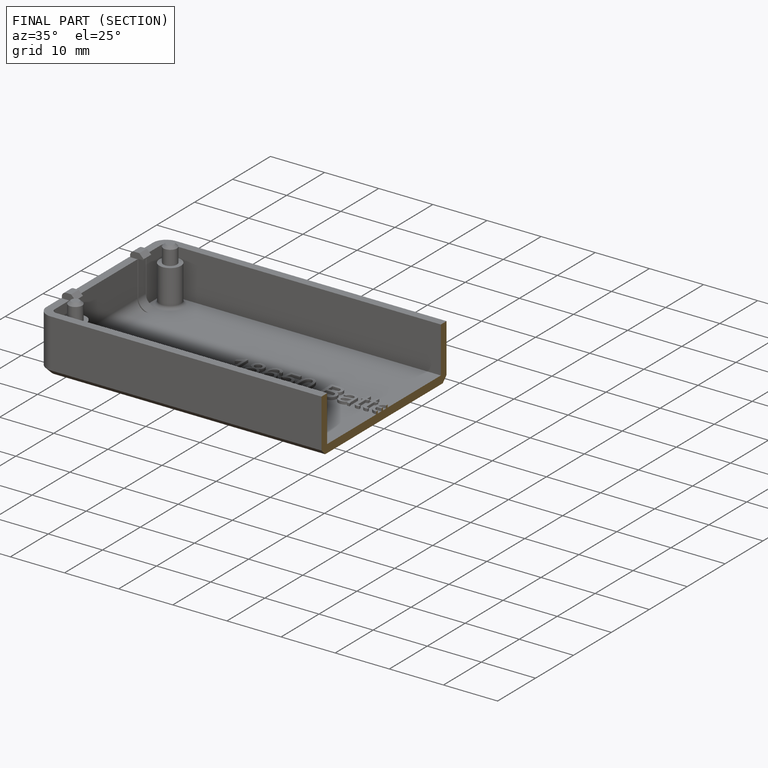
[diagram: finished part — half-section view (interior)]
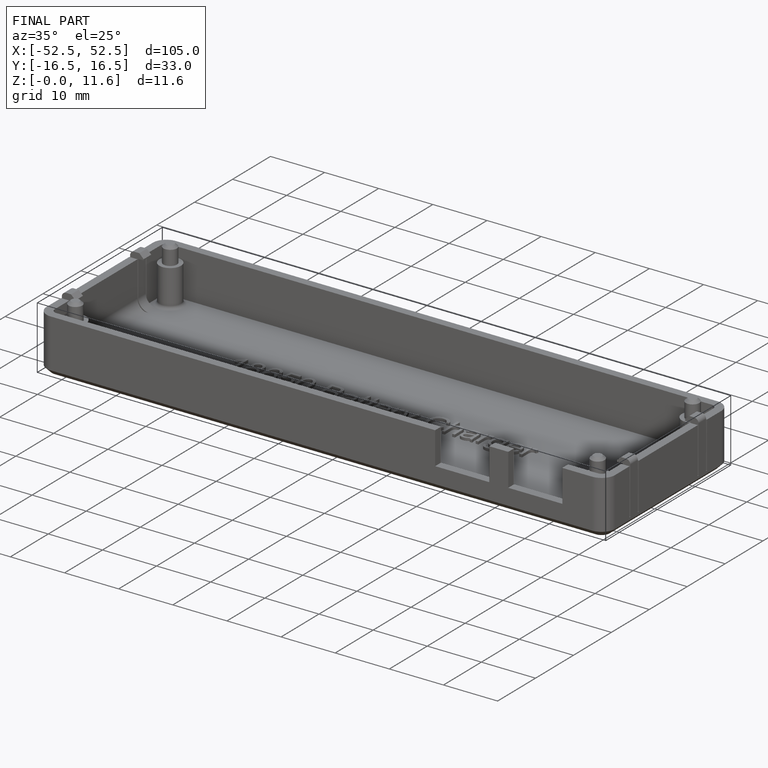
[diagram: finished part — iso view with bounding-box wireframe]
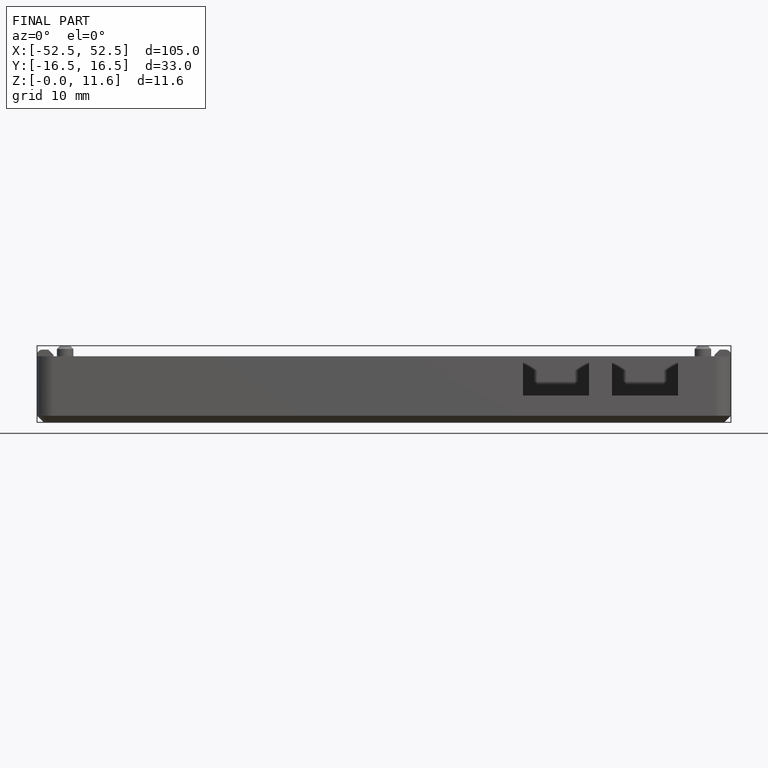
[diagram: finished part — front view with bounding-box wireframe]
